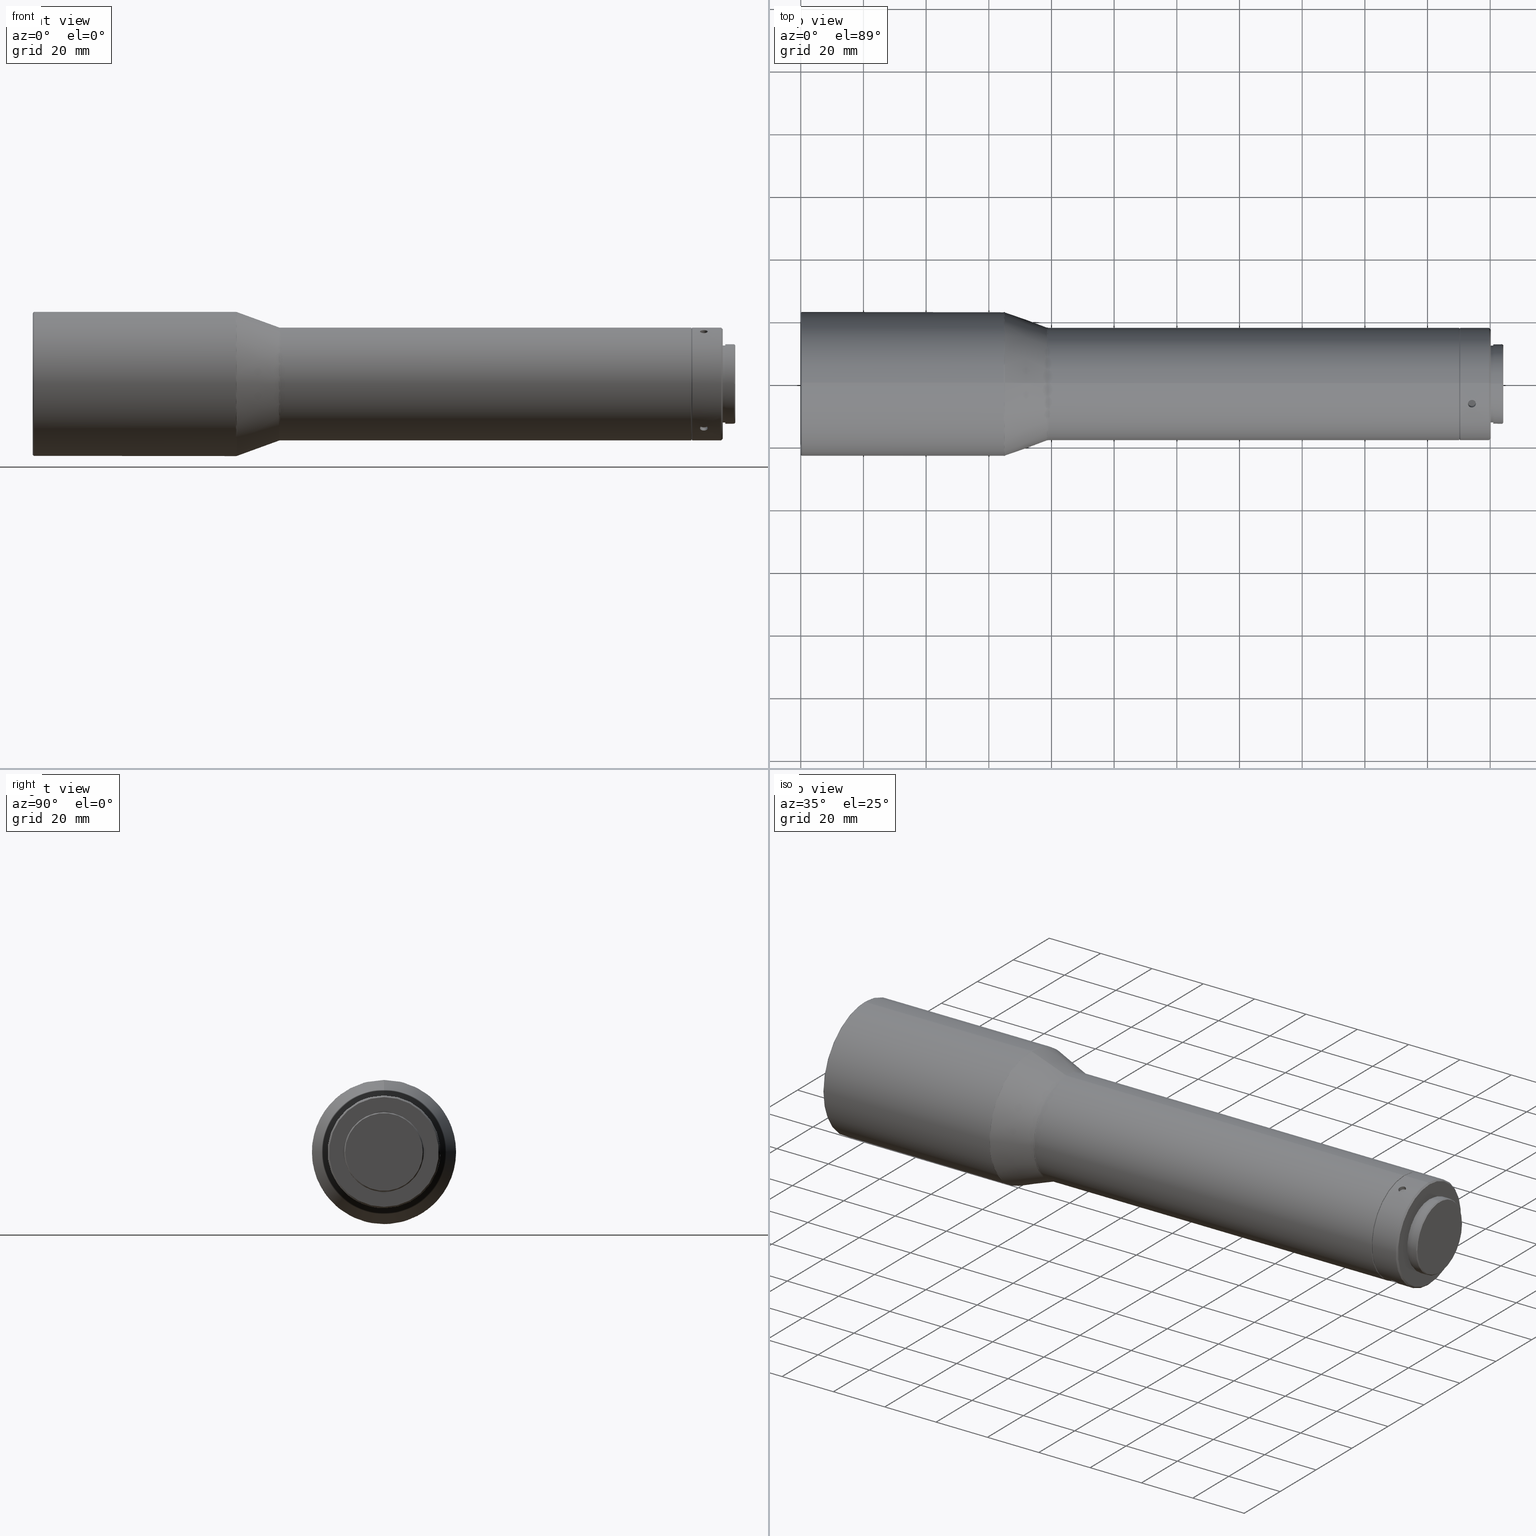
[diagram: canonical four-view strip — front | top / right | iso, engineering-drawing reading convention]
A machine part, canonical four-view strip (front | top / right | iso — engineering-drawing reading convention). The complete STEP part file that produces these views, byte-faithful:
ISO-10303-21;
HEADER;
FILE_DESCRIPTION (( 'STEP AP203' ),
    '1' );
FILE_NAME ('600084.STEP',
    '2024-08-14T02:19:47',
    ( 'Windows User' ),
    ( 'P R C' ),
    'SwSTEP 2.0',
    'SolidWorks 2020',
    '' );
FILE_SCHEMA (( 'CONFIG_CONTROL_DESIGN' ));
ENDSEC;

DATA;
#1 = CARTESIAN_POINT ( 'NONE',  ( 694.1539530000000013, -4.984072576283323563, 15.99104999157488471 ) ) ;
#2 = CARTESIAN_POINT ( 'NONE',  ( 480.0000000000000000, -3.869796473041096393E-15, -3.479664509717021198E-15 ) ) ;
#3 = VERTEX_POINT ( 'NONE', #251 ) ;
#4 = ORIENTED_EDGE ( 'NONE', *, *, #328, .T. ) ;
#5 = CARTESIAN_POINT ( 'NONE',  ( 693.3860338980899769, 17.63312331918380593, -3.617544228598711609 ) ) ;
#6 = FACE_OUTER_BOUND ( 'NONE', #321, .T. ) ;
#7 = CIRCLE ( 'NONE', #508, 21.00000000000000000 ) ;
#8 = APPROVAL_STATUS ( 'not_yet_approved' ) ;
#9 = AXIS2_PLACEMENT_3D ( 'NONE', #527, #333, #68 ) ;
#10 = CARTESIAN_POINT ( 'NONE',  ( 544.9406229593189437, 45.99999999999999289, 22.99999999999999645 ) ) ;
#11 = CARTESIAN_POINT ( 'NONE',  ( 693.8263084203707649, 16.70401833738361219, -1.238707011297198290 ) ) ;
#12 = LOCAL_TIME ( 10, 19, 47.00000000000000000, #532 ) ;
#13 = CARTESIAN_POINT ( 'NONE',  ( 695.2462418450243149, -6.744513336884611299, 15.33260676888644269 ) ) ;
#14 = DIRECTION ( 'NONE',  ( 1.000000000000000000, 0.000000000000000000, 0.000000000000000000 ) ) ;
#15 = CARTESIAN_POINT ( 'NONE',  ( 544.9406229593188300, -3.869796473041097182E-15, -23.00000000000001066 ) ) ;
#16 = CARTESIAN_POINT ( 'NONE',  ( 558.6815909303012404, -3.869796473041095604E-15, 18.02030814396401226 ) ) ;
#17 = CARTESIAN_POINT ( 'NONE',  ( 694.9225919090297339, -7.081752039195870374, 15.17948520018934744 ) ) ;
#18 = CC_DESIGN_PERSON_AND_ORGANIZATION_ASSIGNMENT ( #206, #469, ( #808 ) ) ;
#19 = ORIENTED_EDGE ( 'NONE', *, *, #185, .T. ) ;
#20 = CARTESIAN_POINT ( 'NONE',  ( 558.6815909303012404, 36.04061628792802452, 18.02030814396401226 ) ) ;
#21 = CARTESIAN_POINT ( 'NONE',  ( 692.9361681631301053, -6.319565982765296575, 16.85485129358579925 ) ) ;
#22 = CARTESIAN_POINT ( 'NONE',  ( 545.1656931626172309, -3.869796473041096393E-15, 22.93969262078587690 ) ) ;
#23 = CARTESIAN_POINT ( 'NONE',  ( 694.3191603603999056, 16.34069181403242865, -3.679191530420806266 ) ) ;
#24 = AXIS2_PLACEMENT_3D ( 'NONE', #840, #61, #192 ) ;
#25 = CARTESIAN_POINT ( 'NONE',  ( 693.0612773457091862, -6.035128622231630047, 16.95877792921812599 ) ) ;
#26 = CALENDAR_DATE ( 2024, 14, 8 ) ;
#27 = EDGE_LOOP ( 'NONE', ( #19 ) ) ;
#28 = CARTESIAN_POINT ( 'NONE',  ( 558.7967641379544830, -3.869796473041095604E-15, 17.99999999999999645 ) ) ;
#29 = ADVANCED_FACE ( 'NONE', ( #805, #290 ), #632, .T. ) ;
#30 = DIRECTION ( 'NONE',  ( 1.000000000000000000, 1.206764157201256946E-15, -0.000000000000000000 ) ) ;
#31 = DIRECTION ( 'NONE',  ( -1.000000000000000000, 0.000000000000000000, 0.000000000000000000 ) ) ;
#32 = CARTESIAN_POINT ( 'NONE',  ( 700.9539529999999559, 0.000000000000000000, 0.000000000000000000 ) ) ;
#33 = B_SPLINE_CURVE_WITH_KNOTS ( 'NONE', 3,
 ( #94, #538, #281, #146, #82, #204, #801, #208, #151, #605, #596, #91, #359, #615, #141, #11, #412, #273, #485, #816, #467, #806, #221, #534, #542, #405, #213, #675, #743, #417, #353, #609, #23, #287 ),
 .UNSPECIFIED., .T., .F.,
 ( 4, 2, 2, 2, 2, 2, 2, 2, 2, 2, 2, 2, 2, 2, 2, 2, 4 ),
 ( 0.000000000000000000, 0.0004885741745775171304, 0.0009771483491550342609, 0.001465722523732551500, 0.001954296698310068522, 0.002442870872887585761, 0.002931445047465102132, 0.003420019222042619371, 0.003908593396620135309, 0.004397167571197652981, 0.004885741745775168919, 0.005374315920352684857, 0.005862890094930200795, 0.006351464269507717600, 0.006840038444085234405, 0.007328612618662749476, 0.007817186793240265413 ),
 .UNSPECIFIED. ) ;
#34 = DATE_AND_TIME ( #752, #226 ) ;
#35 = DESIGN_CONTEXT ( 'detailed design', #175, 'design' ) ;
#36 = PLANE ( 'NONE',  #341 ) ;
#37 = ORIENTED_EDGE ( 'NONE', *, *, #603, .F. ) ;
#38 = AXIS2_PLACEMENT_3D ( 'NONE', #773, #443, #565 ) ;
#39 = CARTESIAN_POINT ( 'NONE',  ( 693.5239466262733004, -10.30667079046719259, -14.75725210230199558 ) ) ;
#40 = FACE_OUTER_BOUND ( 'NONE', #528, .T. ) ;
#41 = PERSON_AND_ORGANIZATION_ROLE ( 'classification_officer' ) ;
#42 = CARTESIAN_POINT ( 'NONE',  ( 694.1539530000000013, -11.35661923774906512, -12.31185846115420723 ) ) ;
#43 = FACE_BOUND ( 'NONE', #451, .T. ) ;
#44 = CARTESIAN_POINT ( 'NONE',  ( 693.1528579787974422, -9.794862137911502842, -13.58782560668251449 ) ) ;
#45 = ADVANCED_FACE ( 'NONE', ( #145, #670 ), #803, .T. ) ;
#46 = CIRCLE ( 'NONE', #458, 18.00000000000000355 ) ;
#47 = CARTESIAN_POINT ( 'NONE',  ( 545.1656931626172309, -3.869796473041096393E-15, -3.469446951953614189E-15 ) ) ;
#48 = CARTESIAN_POINT ( 'NONE',  ( 694.9225851668022642, -11.94878711341109501, -13.46253344001305408 ) ) ;
#49 = CARTESIAN_POINT ( 'NONE',  ( 690.1539529999998877, 0.000000000000000000, -17.70000000000001350 ) ) ;
#50 = FACE_OUTER_BOUND ( 'NONE', #373, .T. ) ;
#51 = CYLINDRICAL_SURFACE ( 'NONE', #324, 18.00000000000000355 ) ;
#52 = VERTEX_POINT ( 'NONE', #257 ) ;
#53 = EDGE_LOOP ( 'NONE', ( #334 ) ) ;
#54 = CARTESIAN_POINT ( 'NONE',  ( 694.9225851668026053, 17.63328951505440401, -3.616686464619403907 ) ) ;
#55 = FACE_OUTER_BOUND ( 'NONE', #791, .T. ) ;
#56 = CARTESIAN_POINT ( 'NONE',  ( 693.5235284048869744, -12.01785231231564310, -13.40056669838811132 ) ) ;
#57 = DIRECTION ( 'NONE',  ( -1.000000000000000000, -4.323966232386611717E-15, 6.392020651001037236E-16 ) ) ;
#58 = EDGE_LOOP ( 'NONE', ( #78 ) ) ;
#59 = CARTESIAN_POINT ( 'NONE',  ( 694.3191542896942110, 17.58070249249593076, -3.862499174154911064 ) ) ;
#60 = DIRECTION ( 'NONE',  ( 0.000000000000000000, 0.6212709192228513810, 0.7835958428475698900 ) ) ;
#61 = DIRECTION ( 'NONE',  ( -1.000000000000000000, 0.000000000000000000, 0.000000000000000000 ) ) ;
#62 = AXIS2_PLACEMENT_3D ( 'NONE', #818, #88, #157 ) ;
#63 = AXIS2_PLACEMENT_3D ( 'NONE', #780, #183, #131 ) ;
#64 = CARTESIAN_POINT ( 'NONE',  ( 700.1539529999998877, 0.000000000000000000, 12.30000000000000071 ) ) ;
#65 = EDGE_LOOP ( 'NONE', ( #189 ) ) ;
#66 = CARTESIAN_POINT ( 'NONE',  ( 695.2466198115700990, -5.574769174693775753, 15.79555437859254674 ) ) ;
#67 = FACE_OUTER_BOUND ( 'NONE', #242, .T. ) ;
#68 = DIRECTION ( 'NONE',  ( 0.000000000000000000, 0.000000000000000000, 1.000000000000000000 ) ) ;
#69 = EDGE_LOOP ( 'NONE', ( #200 ) ) ;
#70 = CARTESIAN_POINT ( 'NONE',  ( 694.1539529999998877, 17.94629862044067181, -1.389376056353806899 ) ) ;
#71 = FACE_OUTER_BOUND ( 'NONE', #65, .T. ) ;
#72 = VERTEX_POINT ( 'NONE', #144 ) ;
#73 = CARTESIAN_POINT ( 'NONE',  ( 545.0557961669720726, -3.869796473041097182E-15, -22.97969185603598419 ) ) ;
#74 = CARTESIAN_POINT ( 'NONE',  ( 558.7967641379544830, -3.869796473041095604E-15, -18.00000000000000355 ) ) ;
#75 = CARTESIAN_POINT ( 'NONE',  ( 692.9040663716228892, -6.011102590663226941, 15.63482975230559191 ) ) ;
#76 = AXIS2_PLACEMENT_3D ( 'NONE', #386, #844, #243 ) ;
#77 = CALENDAR_DATE ( 2024, 14, 8 ) ;
#78 = ORIENTED_EDGE ( 'NONE', *, *, #799, .F. ) ;
#79 = FACE_BOUND ( 'NONE', #837, .T. ) ;
#80 = FACE_OUTER_BOUND ( 'NONE', #161, .T. ) ;
#81 = EDGE_LOOP ( 'NONE', ( #383 ) ) ;
#82 = CARTESIAN_POINT ( 'NONE',  ( 693.3853152528250803, 16.39447233699084450, -3.433549138737826745 ) ) ;
#83 = CARTESIAN_POINT ( 'NONE',  ( 692.9038406239671986, -6.472784356443936460, 16.79671564449179044 ) ) ;
#84 = EDGE_CURVE ( 'NONE', #705, #705, #7, .T. ) ;
#85 = DIRECTION ( 'NONE',  ( 0.000000000000000000, 0.000000000000000000, 1.000000000000000000 ) ) ;
#86 = DIRECTION ( 'NONE',  ( 0.000000000000000000, 0.000000000000000000, 1.000000000000000000 ) ) ;
#87 = CARTESIAN_POINT ( 'NONE',  ( 558.7967641379544830, -36.00000000000001421, 17.99999999999999289 ) ) ;
#88 = DIRECTION ( 'NONE',  ( 1.000000000000000000, 0.000000000000000000, 0.000000000000000000 ) ) ;
#89 = PERSON_AND_ORGANIZATION ( #766, #106 ) ;
#90 = EDGE_CURVE ( 'NONE', #639, #639, #487, .T. ) ;
#91 = CARTESIAN_POINT ( 'NONE',  ( 693.0612865907650075, 16.65064900731228192, -1.825781247989363587 ) ) ;
#92 = CIRCLE ( 'NONE', #198, 23.00000000000000000 ) ;
#93 = CARTESIAN_POINT ( 'NONE',  ( 694.4815780172561972, -7.740454194361974238, 16.25082554585191730 ) ) ;
#94 = CARTESIAN_POINT ( 'NONE',  ( 694.1539530000000013, 16.34069181403242865, -3.679191530420805378 ) ) ;
#95 = CARTESIAN_POINT ( 'NONE',  ( 695.2466290156608011, -7.204478414539099873, 16.49601215649212094 ) ) ;
#96 = COORDINATED_UNIVERSAL_TIME_OFFSET ( 8, 0, .AHEAD. ) ;
#97 = DIRECTION ( 'NONE',  ( 0.000000000000000000, 0.000000000000000000, 1.000000000000000000 ) ) ;
#98 = ORIENTED_EDGE ( 'NONE', *, *, #720, .T. ) ;
#99 = ADVANCED_FACE ( 'NONE', ( #693, #55 ), #697, .F. ) ;
#100 = PRODUCT_DEFINITION_SHAPE ( 'NONE', 'NONE',  #472 ) ;
#101 = SECURITY_CLASSIFICATION_LEVEL ( 'unclassified' ) ;
#102 = CARTESIAN_POINT ( 'NONE',  ( 693.3860402694754157, -9.604223922810559699, -13.72323620210708661 ) ) ;
#103 = AXIS2_PLACEMENT_3D ( 'NONE', #240, #698, #312 ) ;
#104 = DIRECTION ( 'NONE',  ( -1.000000000000000000, 0.000000000000000000, -0.000000000000000000 ) ) ;
#105 = APPROVAL ( #475, 'δָ��' ) ;
#106 = ORGANIZATION ( 'δָ��', 'δָ��', '' ) ;
#107 = DIRECTION ( 'NONE',  ( 0.000000000000000000, 0.000000000000000000, 1.000000000000000000 ) ) ;
#108 = DATE_AND_TIME ( #308, #511 ) ;
#109 = ADVANCED_FACE ( 'NONE', ( #113, #376 ), #369, .T. ) ;
#110 = DIRECTION ( 'NONE',  ( 0.000000000000000000, 0.000000000000000000, 1.000000000000000000 ) ) ;
#111 = ADVANCED_BREP_SHAPE_REPRESENTATION ( '600084', ( #429, #153, #623 ), #301 ) ;
#112 = VERTEX_POINT ( 'NONE', #509 ) ;
#113 = FACE_OUTER_BOUND ( 'NONE', #608, .T. ) ;
#114 = CARTESIAN_POINT ( 'NONE',  ( 695.2466290156608011, -10.68372638138948894, -14.48726740625360776 ) ) ;
#115 = FACE_OUTER_BOUND ( 'NONE', #649, .T. ) ;
#116 = EDGE_LOOP ( 'NONE', ( #781 ) ) ;
#117 = CARTESIAN_POINT ( 'NONE',  ( 558.9137140779818083, 35.99999999999999289, 17.99999999999999645 ) ) ;
#118 = CC_DESIGN_PERSON_AND_ORGANIZATION_ASSIGNMENT ( #536, #798, ( #808 ) ) ;
#119 = DIRECTION ( 'NONE',  ( 0.000000000000000000, -1.000000000000000000, 0.000000000000000000 ) ) ;
#120 = EDGE_LOOP ( 'NONE', ( #441 ) ) ;
#121 = CARTESIAN_POINT ( 'NONE',  ( 558.7967641379544830, -36.00000000000001421, -18.00000000000000711 ) ) ;
#122 = EDGE_CURVE ( 'NONE', #245, #245, #703, .T. ) ;
#123 = CYLINDRICAL_SURFACE ( 'NONE', #648, 16.74976594698285837 ) ;
#124 = CARTESIAN_POINT ( 'NONE',  ( 694.3191542896935289, -12.13537365316246941, -13.29408538780048765 ) ) ;
#125 = CYLINDRICAL_SURFACE ( 'NONE', #9, 12.30000000000000071 ) ;
#126 = ORIENTED_EDGE ( 'NONE', *, *, #122, .F. ) ;
#127 = FACE_OUTER_BOUND ( 'NONE', #770, .T. ) ;
#128 = CARTESIAN_POINT ( 'NONE',  ( 692.9038402292597993, -6.314391396067536633, 15.51482249451557216 ) ) ;
#129 = CARTESIAN_POINT ( 'NONE',  ( 693.9887562969522605, -12.13537410193711352, -13.29408497814099732 ) ) ;
#130 = CIRCLE ( 'NONE', #103, 18.00000000000000355 ) ;
#131 = DIRECTION ( 'NONE',  ( 0.000000000000000000, -1.000000000000000000, 0.000000000000000000 ) ) ;
#132 = ORIENTED_EDGE ( 'NONE', *, *, #160, .T. ) ;
#133 = CYLINDRICAL_SURFACE ( 'NONE', #356, 23.00000000000000000 ) ;
#134 = B_SPLINE_CURVE_WITH_KNOTS ( 'NONE', 3,
 ( #646, #667, #138, #187, #325, #260, #525, #191, #75, #128, #340, #531, #398, #602, #598, #793, #269, #390, #394, #274, #17, #408, #13, #535, #650, #582, #656, #66, #331, #714, #142, #588, #195, #1 ),
 .UNSPECIFIED., .T., .F.,
 ( 4, 2, 2, 2, 2, 2, 2, 2, 2, 2, 2, 2, 2, 2, 2, 2, 4 ),
 ( 0.000000000000000000, 0.0004885741745775166968, 0.0009771483491550333935, 0.001465722523732549982, 0.001954296698310066787, 0.002442870872887583592, 0.002931445047465099964, 0.003420019222042616769, 0.003908593396620133574, 0.004397167571197650379, 0.004885741745775167184, 0.005374315920352683990, 0.005862890094930199927, 0.006351464269507716733, 0.006840038444085233538, 0.007328612618662750343, 0.007817186793240267148 ),
 .UNSPECIFIED. ) ;
#135 = ADVANCED_FACE ( 'NONE', ( #380, #574 ), #371, .T. ) ;
#136 = EDGE_LOOP ( 'NONE', ( #640 ) ) ;
#137 = CARTESIAN_POINT ( 'NONE',  ( 558.7967641379544830, -3.869796473041095604E-15, 17.99999999999999645 ) ) ;
#138 = CARTESIAN_POINT ( 'NONE',  ( 693.8266383750029718, -5.015257367322870863, 15.98142070950372684 ) ) ;
#139 = APPROVAL_ROLE ( '' ) ;
#140 = ORIENTED_EDGE ( 'NONE', *, *, #196, .T. ) ;
#141 = CARTESIAN_POINT ( 'NONE',  ( 693.5235235449296169, 16.69423364120878972, -1.364253205317045969 ) ) ;
#142 = CARTESIAN_POINT ( 'NONE',  ( 694.7843839461005473, -5.135341497592309956, 15.94323967701663491 ) ) ;
#143 = AXIS2_PLACEMENT_3D ( 'NONE', #352, #834, #239 ) ;
#144 = CARTESIAN_POINT ( 'NONE',  ( 690.1539529999997740, 0.000000000000000000, 17.90000000000001990 ) ) ;
#145 = FACE_OUTER_BOUND ( 'NONE', #314, .T. ) ;
#146 = CARTESIAN_POINT ( 'NONE',  ( 693.5239352389352234, 16.37487284808257115, -3.524507563301432889 ) ) ;
#147 = ADVANCED_FACE ( 'NONE', ( #305 ), #182, .T. ) ;
#148 = CARTESIAN_POINT ( 'NONE',  ( 480.3000000000000114, -3.869796473041096393E-15, -3.469446951953614189E-15 ) ) ;
#149 = PERSON_AND_ORGANIZATION ( #766, #106 ) ;
#150 = CARTESIAN_POINT ( 'NONE',  ( 545.0557961669719589, -45.95938371207196838, -22.97969185603598419 ) ) ;
#151 = CARTESIAN_POINT ( 'NONE',  ( 692.9040663716228892, 16.54571104467299847, -2.611647327884065728 ) ) ;
#152 = CARTESIAN_POINT ( 'NONE',  ( 693.5239466262733004, -7.626819815411176151, 16.30446478413866274 ) ) ;
#153 = MANIFOLD_SOLID_BREP ( '<��Ƭ>-<�ƶ���1>', #689 ) ;
#154 = EDGE_LOOP ( 'NONE', ( #569 ) ) ;
#155 = CARTESIAN_POINT ( 'NONE',  ( 695.3709683772533481, -6.317341902085681582, 16.85567621398044125 ) ) ;
#156 = CARTESIAN_POINT ( 'NONE',  ( 558.5716939346561958, 36.12061475842821778, 18.06030737921410889 ) ) ;
#157 = DIRECTION ( 'NONE',  ( 0.000000000000000000, 0.000000000000000000, -1.000000000000000000 ) ) ;
#158 = PERSON_AND_ORGANIZATION ( #766, #106 ) ;
#159 = DIRECTION ( 'NONE',  ( 0.000000000000000000, 0.3679784465944443417, -0.9298343201032858163 ) ) ;
#160 = EDGE_CURVE ( 'NONE', #3, #3, #620, .T. ) ;
#161 = EDGE_LOOP ( 'NONE', ( #246 ) ) ;
#162 = CARTESIAN_POINT ( 'NONE',  ( 695.3717379096971172, -6.925952735488710488, 16.61487601513992729 ) ) ;
#163 = APPROVAL_DATE_TIME ( #108, #700 ) ;
#164 = DIRECTION ( 'NONE',  ( 0.000000000000000000, 1.000000000000000000, 1.318609258053554868E-16 ) ) ;
#165 = CC_DESIGN_PERSON_AND_ORGANIZATION_ASSIGNMENT ( #794, #550, ( #472 ) ) ;
#166 = CYLINDRICAL_SURFACE ( 'NONE', #285, 1.249999999999991118 ) ;
#167 = CIRCLE ( 'NONE', #237, 12.69999999999999929 ) ;
#168 = CC_DESIGN_APPROVAL ( #700, ( #546 ) ) ;
#169 = EDGE_CURVE ( 'NONE', #845, #845, #236, .T. ) ;
#170 = CYLINDRICAL_SURFACE ( 'NONE', #431, 16.74976594698285837 ) ;
#171 = DIRECTION ( 'NONE',  ( 1.000000000000000000, 1.206764157201256946E-15, -0.000000000000000000 ) ) ;
#172 = DIRECTION ( 'NONE',  ( 0.000000000000000000, 0.000000000000000000, 1.000000000000000000 ) ) ;
#173 = CARTESIAN_POINT ( 'NONE',  ( 694.4815780172561972, -10.20340065799581630, -14.82884274207328268 ) ) ;
#174 = FACE_OUTER_BOUND ( 'NONE', #517, .T. ) ;
#175 = APPLICATION_CONTEXT ( 'configuration controlled 3d designs of mechanical parts and assemblies' ) ;
#176 = CYLINDRICAL_SURFACE ( 'NONE', #690, 16.74976594698285837 ) ;
#177 = CARTESIAN_POINT ( 'NONE',  ( 695.1531230424836849, -11.77517310556040542, -13.61464720215605162 ) ) ;
#178 = VERTEX_POINT ( 'NONE', #571 ) ;
#179 = ORIENTED_EDGE ( 'NONE', *, *, #768, .F. ) ;
#180 = CARTESIAN_POINT ( 'NONE',  ( 693.8263297959090323, 17.58779726965680368, -3.830580796697999890 ) ) ;
#181 = AXIS2_PLACEMENT_3D ( 'NONE', #514, #248, #315 ) ;
#182 = SPHERICAL_SURFACE ( 'NONE', #76, 31.20951493132240273 ) ;
#183 = DIRECTION ( 'NONE',  ( -1.000000000000000000, -4.323966232386611717E-15, 6.392020651001037236E-16 ) ) ;
#184 = ORIENTED_EDGE ( 'NONE', *, *, #303, .F. ) ;
#185 = EDGE_CURVE ( 'NONE', #52, #52, #663, .T. ) ;
#186 = CARTESIAN_POINT ( 'NONE',  ( 558.7967641379544830, 35.99999999999998579, 17.99999999999999289 ) ) ;
#187 = CARTESIAN_POINT ( 'NONE',  ( 693.5239352389351097, -5.135123338391931469, 15.94330965183023530 ) ) ;
#188 = VERTEX_POINT ( 'NONE', #316 ) ;
#189 = ORIENTED_EDGE ( 'NONE', *, *, #593, .T. ) ;
#190 = CARTESIAN_POINT ( 'NONE',  ( 692.9038406239673122, 17.78277462649526797, -2.792762136347573865 ) ) ;
#191 = CARTESIAN_POINT ( 'NONE',  ( 692.9369423394489331, -5.857201853785829471, 15.69300726354346054 ) ) ;
#192 = DIRECTION ( 'NONE',  ( 0.000000000000000000, 0.000000000000000000, 1.000000000000000000 ) ) ;
#193 = CARTESIAN_POINT ( 'NONE',  ( 690.4539529999998422, -2.632292590603019455, -17.80648858471136364 ) ) ;
#194 = ORIENTED_EDGE ( 'NONE', *, *, #707, .F. ) ;
#195 = CARTESIAN_POINT ( 'NONE',  ( 694.3191603603997919, -4.984072576283323563, 15.99104999157488471 ) ) ;
#196 = EDGE_CURVE ( 'NONE', #716, #716, #355, .T. ) ;
#197 = DIRECTION ( 'NONE',  ( -1.000000000000000000, -0.000000000000000000, -0.000000000000000000 ) ) ;
#198 = AXIS2_PLACEMENT_3D ( 'NONE', #382, #387, #841 ) ;
#199 = CARTESIAN_POINT ( 'NONE',  ( 703.8539529999999331, 1.998637450913431941E-44, -2.954540154457078017E-45 ) ) ;
#200 = ORIENTED_EDGE ( 'NONE', *, *, #625, .T. ) ;
#201 = CARTESIAN_POINT ( 'NONE',  ( 558.9137140779818083, -36.00000000000000000, -18.00000000000000000 ) ) ;
#202 = CARTESIAN_POINT ( 'NONE',  ( 694.1539529999998877, 0.000000000000000000, 0.000000000000000000 ) ) ;
#203 = CARTESIAN_POINT ( 'NONE',  ( 545.1656931626172309, -3.869796473041096393E-15, -22.93969262078588400 ) ) ;
#204 = CARTESIAN_POINT ( 'NONE',  ( 693.1547898044215117, 16.44023637096639590, -3.207274694072665078 ) ) ;
#205 = CARTESIAN_POINT ( 'NONE',  ( 480.0000000000000000, -3.469446951953614189E-15, 0.000000000000000000 ) ) ;
#206 = PERSON_AND_ORGANIZATION ( #766, #106 ) ;
#207 = DIRECTION ( 'NONE',  ( -1.000000000000000000, 0.000000000000000000, 0.000000000000000000 ) ) ;
#208 = CARTESIAN_POINT ( 'NONE',  ( 692.9369423394493879, 16.51914387889526381, -2.774018031299973153 ) ) ;
#209 = DIRECTION ( 'NONE',  ( 0.000000000000000000, 0.000000000000000000, 1.000000000000000000 ) ) ;
#210 = AXIS2_PLACEMENT_3D ( 'NONE', #589, #500, #631 ) ;
#211 = APPLICATION_PROTOCOL_DEFINITION ( 'international standard', 'config_control_design', 1994, #175 ) ;
#212 = CARTESIAN_POINT ( 'NONE',  ( 545.1656931626172309, -45.87938524157177511, -22.93969262078588756 ) ) ;
#213 = CARTESIAN_POINT ( 'NONE',  ( 695.3717364863322246, 16.51954686935625105, -2.771671104105243977 ) ) ;
#214 = CARTESIAN_POINT ( 'NONE',  ( 693.5235284048869744, -5.596305029753968263, 17.10804875058898844 ) ) ;
#215 = CARTESIAN_POINT ( 'NONE',  ( 0.000000000000000000, 0.000000000000000000, 0.000000000000000000 ) ) ;
#216 = CARTESIAN_POINT ( 'NONE',  ( 544.8236730192915047, -3.869796473041096393E-15, -23.00000000000000355 ) ) ;
#217 = CARTESIAN_POINT ( 'NONE',  ( 558.5716939346561958, 36.12061475842821778, -18.06030737921411955 ) ) ;
#218 = CARTESIAN_POINT ( 'NONE',  ( 692.9369376990360934, -10.92403747239562151, -14.30692261403602750 ) ) ;
#219 = VERTEX_POINT ( 'NONE', #814 ) ;
#220 = EDGE_LOOP ( 'NONE', ( #37 ) ) ;
#221 = CARTESIAN_POINT ( 'NONE',  ( 695.2462418450242012, 16.65068363653518801, -1.825383498538271532 ) ) ;
#222 = CARTESIAN_POINT ( 'NONE',  ( 695.2462491720301614, -6.034744968265242981, 16.95890569896510058 ) ) ;
#223 = AXIS2_PLACEMENT_3D ( 'NONE', #630, #709, #839 ) ;
#224 = LOCAL_TIME ( 10, 19, 47.00000000000000000, #732 ) ;
#225 = CARTESIAN_POINT ( 'NONE',  ( 694.1539529999998877, 0.000000000000000000, 0.000000000000000000 ) ) ;
#226 = LOCAL_TIME ( 10, 19, 47.00000000000000000, #694 ) ;
#227 = CARTESIAN_POINT ( 'NONE',  ( 694.1539530000004561, -10.17638427043243432, -14.84726248102643886 ) ) ;
#228 = EDGE_CURVE ( 'NONE', #112, #112, #772, .T. ) ;
#229 = CARTESIAN_POINT ( 'NONE',  ( 692.9369423394489331, -10.66194202510938460, -12.91898923224361617 ) ) ;
#230 = ORIENTED_EDGE ( 'NONE', *, *, #413, .T. ) ;
#231 = CARTESIAN_POINT ( 'NONE',  ( 693.0612773457091862, -11.66916819272587169, -13.70596366656828735 ) ) ;
#232 = FACE_OUTER_BOUND ( 'NONE', #547, .T. ) ;
#233 = ADVANCED_FACE ( 'NONE', ( #494 ), #176, .T. ) ;
#234 = DIRECTION ( 'NONE',  ( 1.000000000000000000, 0.000000000000000000, 0.000000000000000000 ) ) ;
#235 = SHAPE_DEFINITION_REPRESENTATION ( #100, #111 ) ;
#236 = CIRCLE ( 'NONE', #181, 17.99999999999998934 ) ;
#237 = AXIS2_PLACEMENT_3D ( 'NONE', #32, #361, #209 ) ;
#238 = ADVANCED_FACE ( 'NONE', ( #50 ), #170, .T. ) ;
#239 = DIRECTION ( 'NONE',  ( 0.000000000000000000, 0.000000000000000000, 1.000000000000000000 ) ) ;
#240 = CARTESIAN_POINT ( 'NONE',  ( 690.0539529999998649, -3.869796473041096393E-15, -3.479664509717021198E-15 ) ) ;
#241 = CARTESIAN_POINT ( 'NONE',  ( 693.5235235449291622, -9.528594753603170986, -13.77550382734115608 ) ) ;
#242 = EDGE_LOOP ( 'NONE', ( #396 ) ) ;
#243 = DIRECTION ( 'NONE',  ( 0.000000000000000000, -1.000000000000000000, -1.318609258053555115E-16 ) ) ;
#244 = FACE_OUTER_BOUND ( 'NONE', #27, .T. ) ;
#245 = VERTEX_POINT ( 'NONE', #522 ) ;
#246 = ORIENTED_EDGE ( 'NONE', *, *, #768, .T. ) ;
#247 = CARTESIAN_POINT ( 'NONE',  ( 695.2462491720306161, 17.70421563982117519, -3.253210401604142543 ) ) ;
#248 = DIRECTION ( 'NONE',  ( -1.000000000000000000, -0.000000000000000000, -0.000000000000000000 ) ) ;
#249 = B_SPLINE_CURVE_WITH_KNOTS ( 'NONE', 3,
 ( #735, #278, #778, #152, #740, #414, #686, #751, #802, #83, #21, #25, #545, #424, #214, #486, #292, #748, #367, #683, #553, #282, #222, #155, #681, #555, #162, #95, #618, #809, #350, #93, #744, #418 ),
 .UNSPECIFIED., .T., .F.,
 ( 4, 2, 2, 2, 2, 2, 2, 2, 2, 2, 2, 2, 2, 2, 2, 2, 4 ),
 ( 0.000000000000000000, 0.0004885519476059300764, 0.0009771038952118601528, 0.001465655842817790121, 0.001954207790423720306, 0.002442759738029650490, 0.002931311685635580241, 0.003419863633241510426, 0.003908415580847440611, 0.004396967528453370362, 0.004885519476059300981, 0.005374071423665230732, 0.005862623371271160483, 0.006351175318877091101, 0.006839727266483020852, 0.007328279214088951471, 0.007816831161694881222 ),
 .UNSPECIFIED. ) ;
#250 = ADVANCED_FACE ( 'NONE', ( #627, #43 ), #610, .T. ) ;
#251 = CARTESIAN_POINT ( 'NONE',  ( 700.1539529999998877, 0.000000000000000000, 17.49999999999993960 ) ) ;
#252 = EDGE_LOOP ( 'NONE', ( #635 ) ) ;
#253 = CARTESIAN_POINT ( 'NONE',  ( 695.3709683772536891, 17.75611475031509201, -2.956859535391664906 ) ) ;
#254 = AXIS2_PLACEMENT_3D ( 'NONE', #288, #606, #539 ) ;
#255 = DIRECTION ( 'NONE',  ( 0.000000000000000000, 0.000000000000000000, 1.000000000000000000 ) ) ;
#256 = CARTESIAN_POINT ( 'NONE',  ( 695.3717379096971172, -10.92592834209552777, -14.30548902191356575 ) ) ;
#257 = CARTESIAN_POINT ( 'NONE',  ( 558.9137140779818083, -3.869796473041096393E-15, 18.00000000000000000 ) ) ;
#258 = EDGE_LOOP ( 'NONE', ( #456 ) ) ;
#259 = CARTESIAN_POINT ( 'NONE',  ( 695.4038400273637990, 17.78250657105517618, -2.794468420968557965 ) ) ;
#260 = CARTESIAN_POINT ( 'NONE',  ( 693.1547898044212843, -5.442536823501376908, 15.84129968851408599 ) ) ;
#261 = FACE_OUTER_BOUND ( 'NONE', #842, .T. ) ;
#262 = ORIENTED_EDGE ( 'NONE', *, *, #465, .F. ) ;
#263 = ADVANCED_FACE ( 'NONE', ( #831, #6 ), #407, .T. ) ;
#264 = CARTESIAN_POINT ( 'NONE',  ( 480.0000000000000000, 0.000000000000000000, 0.000000000000000000 ) ) ;
#265 = DIRECTION ( 'NONE',  ( 0.000000000000000000, 0.000000000000000000, 1.000000000000000000 ) ) ;
#266 = CARTESIAN_POINT ( 'NONE',  ( 703.8539529999999331, 0.000000000000000000, 12.69999999999999929 ) ) ;
#267 = ORIENTED_EDGE ( 'NONE', *, *, #363, .F. ) ;
#268 = CARTESIAN_POINT ( 'NONE',  ( 695.1531230424837986, 17.67821689341013780, -3.390275442296270203 ) ) ;
#269 = CARTESIAN_POINT ( 'NONE',  ( 693.9887484632896530, -7.308658681018981085, 15.07110372743392901 ) ) ;
#270 = CIRCLE ( 'NONE', #530, 22.69999999999998508 ) ;
#271 = CARTESIAN_POINT ( 'NONE',  ( 694.1539529999998877, -11.35661923774906690, -12.31185846115420723 ) ) ;
#272 = CARTESIAN_POINT ( 'NONE',  ( 544.9406229593188300, -3.869796473041097182E-15, 23.00000000000000355 ) ) ;
#273 = CARTESIAN_POINT ( 'NONE',  ( 694.3191626431799932, 16.70628798280549532, -1.206068453395431339 ) ) ;
#274 = CARTESIAN_POINT ( 'NONE',  ( 694.7839721988823385, -7.165844262575417289, 15.13965951983607461 ) ) ;
#275 = APPROVAL_DATE_TIME ( #599, #821 ) ;
#276 = CARTESIAN_POINT ( 'NONE',  ( 544.8236730192915047, 45.99999999999999289, -23.00000000000000000 ) ) ;
#277 = CARTESIAN_POINT ( 'NONE',  ( 558.6815909303012404, -3.869796473041095604E-15, 18.02030814396401226 ) ) ;
#278 = CARTESIAN_POINT ( 'NONE',  ( 693.9887537607352215, -7.769914350008241044, 16.23663853738007745 ) ) ;
#279 = EDGE_CURVE ( 'NONE', #188, #188, #510, .T. ) ;
#280 = CARTESIAN_POINT ( 'NONE',  ( 545.1656931626172309, -45.87938524157177511, 22.93969262078588045 ) ) ;
#281 = CARTESIAN_POINT ( 'NONE',  ( 693.8266383750031991, 16.34794500665837447, -3.647370068133275467 ) ) ;
#282 = CARTESIAN_POINT ( 'NONE',  ( 695.1531230424836849, -5.903043787849595603, 17.00492264445266599 ) ) ;
#283 = AXIS2_PLACEMENT_3D ( 'NONE', #202, #60, #468 ) ;
#284 =( LENGTH_UNIT ( ) NAMED_UNIT ( * ) SI_UNIT ( .MILLI., .METRE. ) );
#285 = AXIS2_PLACEMENT_3D ( 'NONE', #225, #159, #365 ) ;
#286 = CARTESIAN_POINT ( 'NONE',  ( 545.0557961669719589, -45.95938371207196838, 22.97969185603597708 ) ) ;
#287 = CARTESIAN_POINT ( 'NONE',  ( 694.1539530000000013, 16.34069181403242865, -3.679191530420805378 ) ) ;
#288 = CARTESIAN_POINT ( 'NONE',  ( 704.1539529999998877, 10.63443068253595847, -1.572063630499026754 ) ) ;
#289 = DATE_AND_TIME ( #26, #12 ) ;
#290 = FACE_OUTER_BOUND ( 'NONE', #220, .T. ) ;
#291 = FACE_BOUND ( 'NONE', #523, .T. ) ;
#292 = CARTESIAN_POINT ( 'NONE',  ( 693.9887562969522605, -5.445328260170564150, 17.15658474577583803 ) ) ;
#293 = FACE_OUTER_BOUND ( 'NONE', #846, .T. ) ;
#294 = ORIENTED_EDGE ( 'NONE', *, *, #196, .F. ) ;
#295 = PRODUCT ( '600084', '600084', '', ( #415 ) ) ;
#296 = ADVANCED_FACE ( 'NONE', ( #80, #346 ), #133, .T. ) ;
#297 = AXIS2_PLACEMENT_3D ( 'NONE', #767, #624, #563 ) ;
#298 = APPROVAL_PERSON_ORGANIZATION ( #421, #700, #368 ) ;
#299 = CARTESIAN_POINT ( 'NONE',  ( 695.4040657705943431, -10.53326054832188774, -13.02427264348059666 ) ) ;
#300 = ORIENTED_EDGE ( 'NONE', *, *, #465, .T. ) ;
#301 =( GEOMETRIC_REPRESENTATION_CONTEXT ( 3 ) GLOBAL_UNCERTAINTY_ASSIGNED_CONTEXT ( ( #763 ) ) GLOBAL_UNIT_ASSIGNED_CONTEXT ( ( #284, #351, #804 ) ) REPRESENTATION_CONTEXT ( 'NONE', 'WORKASPACE' ) );
#302 = CARTESIAN_POINT ( 'NONE',  ( 692.9361681631301053, -11.43694640587159306, -13.90033032875967400 ) ) ;
#303 = EDGE_CURVE ( 'NONE', #775, #775, #496, .T. ) ;
#304 = FACE_OUTER_BOUND ( 'NONE', #120, .T. ) ;
#305 = FACE_OUTER_BOUND ( 'NONE', #388, .T. ) ;
#306 = CARTESIAN_POINT ( 'NONE',  ( 694.7843839461005473, -11.23957983012420492, -12.41895603253173519 ) ) ;
#307 = DIRECTION ( 'NONE',  ( 1.000000000000000000, 0.000000000000000000, 0.000000000000000000 ) ) ;
#308 = CALENDAR_DATE ( 2024, 14, 8 ) ;
#309 = CARTESIAN_POINT ( 'NONE',  ( 693.8263084203706512, -9.424760908320941155, -13.84675071980679562 ) ) ;
#310 = ORIENTED_EDGE ( 'NONE', *, *, #483, .T. ) ;
#311 = CARTESIAN_POINT ( 'NONE',  ( 558.5716939346560821, -3.869796473041096393E-15, -3.479664509717021198E-15 ) ) ;
#312 = DIRECTION ( 'NONE',  ( 0.000000000000000000, 0.000000000000000000, 1.000000000000000000 ) ) ;
#313 = VERTEX_POINT ( 'NONE', #568 ) ;
#314 = EDGE_LOOP ( 'NONE', ( #294 ) ) ;
#315 = DIRECTION ( 'NONE',  ( 0.000000000000000000, -0.1462384772557233925, -0.9892493658172986093 ) ) ;
#316 = CARTESIAN_POINT ( 'NONE',  ( 480.0000000000000000, 0.000000000000000000, 21.00000000000000000 ) ) ;
#317 = ORIENTED_EDGE ( 'NONE', *, *, #437, .T. ) ;
#318 = FACE_BOUND ( 'NONE', #462, .T. ) ;
#319 = DIRECTION ( 'NONE',  ( 0.000000000000000000, 0.000000000000000000, 1.000000000000000000 ) ) ;
#320 = FACE_BOUND ( 'NONE', #776, .T. ) ;
#321 = EDGE_LOOP ( 'NONE', ( #329 ) ) ;
#322 = CARTESIAN_POINT ( 'NONE',  ( 693.5235284048875428, 17.61415734206959272, -3.707482052201301226 ) ) ;
#323 = AXIS2_PLACEMENT_3D ( 'NONE', #47, #439, #319 ) ;
#324 = AXIS2_PLACEMENT_3D ( 'NONE', #2, #197, #265 ) ;
#325 = CARTESIAN_POINT ( 'NONE',  ( 693.3853152528245118, -5.223695389206359785, 15.91480409484419312 ) ) ;
#326 = CARTESIAN_POINT ( 'NONE',  ( 694.4812538894949512, -12.11133574959070813, -13.31613678099930276 ) ) ;
#327 = VERTEX_POINT ( 'NONE', #584 ) ;
#328 = EDGE_CURVE ( 'NONE', #392, #392, #134, .T. ) ;
#329 = ORIENTED_EDGE ( 'NONE', *, *, #169, .T. ) ;
#330 = CARTESIAN_POINT ( 'NONE',  ( 694.1539529999998877, 17.94629862044067181, -1.389376056353806899 ) ) ;
#331 = CARTESIAN_POINT ( 'NONE',  ( 695.1550486330894500, -5.444521650468019836, 15.84062855456844154 ) ) ;
#332 = CYLINDRICAL_SURFACE ( 'NONE', #210, 1.249999999999990896 ) ;
#333 = DIRECTION ( 'NONE',  ( -1.000000000000000000, 0.000000000000000000, 0.000000000000000000 ) ) ;
#334 = ORIENTED_EDGE ( 'NONE', *, *, #593, .F. ) ;
#335 = CYLINDRICAL_SURFACE ( 'NONE', #283, 1.249999999999991784 ) ;
#336 = DATE_AND_TIME ( #728, #224 ) ;
#337 = ORIENTED_EDGE ( 'NONE', *, *, #328, .F. ) ;
#338 = CARTESIAN_POINT ( 'NONE',  ( 693.0612773457096409, 17.70429681495746266, -3.252814262650475463 ) ) ;
#339 = AXIS2_PLACEMENT_3D ( 'NONE', #311, #642, #110 ) ;
#340 = CARTESIAN_POINT ( 'NONE',  ( 692.9361695947466160, -6.465837914812671450, 15.45220144800053674 ) ) ;
#341 = AXIS2_PLACEMENT_3D ( 'NONE', #564, #31, #97 ) ;
#342 = LOCAL_TIME ( 10, 19, 47.00000000000000000, #662 ) ;
#343 = EDGE_LOOP ( 'NONE', ( #629 ) ) ;
#344 = CARTESIAN_POINT ( 'NONE',  ( 558.6815909303012404, -36.04061628792804584, 18.02030814396401226 ) ) ;
#345 = B_SPLINE_CURVE_WITH_KNOTS ( 'NONE', 3,
 ( #227, #490, #482, #39, #755, #672, #813, #218, #824, #758, #302, #231, #492, #559, #56, #521, #129, #124, #326, #567, #48, #177, #835, #764, #454, #702, #256, #114, #515, #381, #779, #173, #377, #715 ),
 .UNSPECIFIED., .T., .F.,
 ( 4, 2, 2, 2, 2, 2, 2, 2, 2, 2, 2, 2, 2, 2, 2, 2, 4 ),
 ( 0.000000000000000000, 0.0004885519476059284501, 0.0009771038952118569001, 0.001465655842817785350, 0.001954207790423713800, 0.002442759738029642250, 0.002931311685635570700, 0.003419863633241499151, 0.003908415580847427601, 0.004396967528453355617, 0.004885519476059284501, 0.005374071423665213385, 0.005862623371271141401, 0.006351175318877069417, 0.006839727266482998301, 0.007328279214088927185, 0.007816831161694855201 ),
 .UNSPECIFIED. ) ;
#346 = FACE_OUTER_BOUND ( 'NONE', #725, .T. ) ;
#347 = ADVANCED_FACE ( 'NONE', ( #71 ), #123, .T. ) ;
#348 = EDGE_LOOP ( 'NONE', ( #230 ) ) ;
#349 = CARTESIAN_POINT ( 'NONE',  ( 558.5716939346560821, -3.869796473041096393E-15, 18.06030737921411244 ) ) ;
#350 = CARTESIAN_POINT ( 'NONE',  ( 694.7843789346068206, -7.626610042654853316, 16.30456320525039615 ) ) ;
#351 =( NAMED_UNIT ( * ) PLANE_ANGLE_UNIT ( ) SI_UNIT ( $, .RADIAN. ) );
#352 = CARTESIAN_POINT ( 'NONE',  ( 700.1539529999998877, 0.000000000000000000, 0.000000000000000000 ) ) ;
#353 = CARTESIAN_POINT ( 'NONE',  ( 694.7843839461007747, 16.37492132771655662, -3.524283644485032063 ) ) ;
#354 = FACE_OUTER_BOUND ( 'NONE', #58, .T. ) ;
#355 = CIRCLE ( 'NONE', #297, 22.93969262078591598 ) ;
#356 = AXIS2_PLACEMENT_3D ( 'NONE', #719, #520, #448 ) ;
#357 = CARTESIAN_POINT ( 'NONE',  ( 699.6539529999998877, 0.000000000000000000, 18.00000000000000355 ) ) ;
#358 = ORIENTED_EDGE ( 'NONE', *, *, #826, .T. ) ;
#359 = CARTESIAN_POINT ( 'NONE',  ( 693.1528579787971012, 16.66483322653549592, -1.688686634656616503 ) ) ;
#360 = ADVANCED_FACE ( 'NONE', ( #459, #848 ), #335, .F. ) ;
#361 = DIRECTION ( 'NONE',  ( 1.000000000000000000, -0.000000000000000000, -0.000000000000000000 ) ) ;
#362 = CARTESIAN_POINT ( 'NONE',  ( 489.0000000000000568, 56.17486957814338666, 31.20951493132240273 ) ) ;
#363 = EDGE_CURVE ( 'NONE', #178, #178, #249, .T. ) ;
#364 = DIRECTION ( 'NONE',  ( -2.413528314402513892E-15, 1.000000000000000000, 0.000000000000000000 ) ) ;
#365 = DIRECTION ( 'NONE',  ( 0.000000000000000000, 0.9298343201032857053, 0.3679784465944443417 ) ) ;
#366 =( BOUNDED_SURFACE ( )  B_SPLINE_SURFACE ( 3, 3, ( 
 ( #592, #117, #529, #792, #201, #730, #463 ),
 ( #137, #186, #446, #74, #121, #87, #28 ),
 ( #16, #20, #471, #671, #796, #344, #277 ),
 ( #349, #156, #217, #481, #680, #734, #423 ) ),
 .UNSPECIFIED., .F., .T., .T. ) 
 B_SPLINE_SURFACE_WITH_KNOTS ( ( 4, 4 ),
 ( 4, 3, 4 ),
 ( 0.000000000000000000, 1.000000000000000000 ),
 ( 0.000000000000000000, 0.5000000000000000000, 1.000000000000000000 ),
 .UNSPECIFIED. ) 
 GEOMETRIC_REPRESENTATION_ITEM ( )  RATIONAL_B_SPLINE_SURFACE ( (
 ( 1.000000000000000000, 0.3333333333333333148, 0.3333333333333333148, 1.000000000000000000, 0.3333333333333333148, 0.3333333333333333148, 1.000000000000000000),
 ( 0.9898718353414676097, 0.3299572784471558329, 0.3299572784471558329, 0.9898718353414676097, 0.3299572784471558329, 0.3299572784471558329, 0.9898718353414676097),
 ( 0.9898718353414676097, 0.3299572784471558329, 0.3299572784471558329, 0.9898718353414676097, 0.3299572784471558329, 0.3299572784471558329, 0.9898718353414676097),
 ( 1.000000000000000000, 0.3333333333333333148, 0.3333333333333333148, 1.000000000000000000, 0.3333333333333333148, 0.3333333333333333148, 1.000000000000000000) ) ) 
 REPRESENTATION_ITEM ( '' )  SURFACE ( )  );
#367 = CARTESIAN_POINT ( 'NONE',  ( 694.4812538894949512, -5.476444857818306033, 17.14679282340788902 ) ) ;
#368 = APPROVAL_ROLE ( '' ) ;
#369 = CONICAL_SURFACE ( 'NONE', #323, 22.93969262078591953, 0.3490658503988599559 ) ;
#370 = CARTESIAN_POINT ( 'NONE',  ( 695.3717364863322246, -10.66011102176840986, -12.92051169581767667 ) ) ;
#371 = CYLINDRICAL_SURFACE ( 'NONE', #647, 12.69999999999999929 ) ;
#372 = CARTESIAN_POINT ( 'NONE',  ( 693.9887484632896530, -9.397629350518574398, -13.86503594906910841 ) ) ;
#373 = EDGE_LOOP ( 'NONE', ( #4 ) ) ;
#374 = DIRECTION ( 'NONE',  ( -1.000000000000000000, -1.547796461101720870E-17, -0.000000000000000000 ) ) ;
#375 = CARTESIAN_POINT ( 'NONE',  ( 693.0616645519133954, -10.89226535158049991, -12.72540160625114147 ) ) ;
#376 = FACE_BOUND ( 'NONE', #717, .T. ) ;
#377 = CARTESIAN_POINT ( 'NONE',  ( 694.3191522392659181, -10.17638427043249827, -14.84726248102640689 ) ) ;
#378 = VERTEX_POINT ( 'NONE', #722 ) ;
#379 = CIRCLE ( 'NONE', #556, 17.90000000000001990 ) ;
#380 = FACE_OUTER_BOUND ( 'NONE', #348, .T. ) ;
#381 = CARTESIAN_POINT ( 'NONE',  ( 694.9218731707630923, -10.38223670815035149, -14.70451716856126190 ) ) ;
#382 = CARTESIAN_POINT ( 'NONE',  ( 480.3000000000000114, -3.869796473041096393E-15, -3.479664509717021198E-15 ) ) ;
#383 = ORIENTED_EDGE ( 'NONE', *, *, #437, .F. ) ;
#384 = CARTESIAN_POINT ( 'NONE',  ( 692.9040659727663751, 17.83045510399110256, -2.470114279036147220 ) ) ;
#385 = ADVANCED_FACE ( 'NONE', ( #676, #474 ), #616, .F. ) ;
#386 = CARTESIAN_POINT ( 'NONE',  ( 511.6680567275546423, 3.469446951953614189E-15, 0.000000000000000000 ) ) ;
#387 = DIRECTION ( 'NONE',  ( 1.000000000000000000, 0.000000000000000000, 0.000000000000000000 ) ) ;
#388 = EDGE_LOOP ( 'NONE', ( #428 ) ) ;
#389 = DIRECTION ( 'NONE',  ( 0.000000000000000000, 0.000000000000000000, 1.000000000000000000 ) ) ;
#390 = CARTESIAN_POINT ( 'NONE',  ( 694.3191626431801069, -7.308658072059366795, 15.07110402274592253 ) ) ;
#391 = DIRECTION ( 'NONE',  ( -1.000000000000000000, -0.000000000000000000, -0.000000000000000000 ) ) ;
#392 = VERTEX_POINT ( 'NONE', #450 ) ;
#393 = CIRCLE ( 'NONE', #24, 12.30000000000000071 ) ;
#394 = CARTESIAN_POINT ( 'NONE',  ( 694.4812696958236984, -7.279328911940432079, 15.08542292956469488 ) ) ;
#395 = CARTESIAN_POINT ( 'NONE',  ( 700.9539529999999559, 0.000000000000000000, 12.30000000000000071 ) ) ;
#396 = ORIENTED_EDGE ( 'NONE', *, *, #557, .F. ) ;
#397 = CARTESIAN_POINT ( 'NONE',  ( 694.4812538894951786, 17.58778060740908700, -3.830656042408584927 ) ) ;
#398 = CARTESIAN_POINT ( 'NONE',  ( 693.1528579787974422, -6.869971088623938904, 15.27651224133900598 ) ) ;
#399 = CARTESIAN_POINT ( 'NONE',  ( 480.0000000000000000, 22.69999999999998153, -3.469446951953614189E-15 ) ) ;
#400 = CARTESIAN_POINT ( 'NONE',  ( 545.0557961669720726, -3.869796473041097182E-15, 22.97969185603597708 ) ) ;
#401 = CARTESIAN_POINT ( 'NONE',  ( 694.3191522392654633, 17.94629862044067536, -1.389376056353806899 ) ) ;
#402 = CARTESIAN_POINT ( 'NONE',  ( 703.8539529999999331, 0.000000000000000000, 0.000000000000000000 ) ) ;
#403 = DATE_TIME_ROLE ( 'creation_date' ) ;
#404 = EDGE_LOOP ( 'NONE', ( #310 ) ) ;
#405 = CARTESIAN_POINT ( 'NONE',  ( 695.4040657705943431, 16.54598124922981839, -2.609934897787010488 ) ) ;
#406 = ADVANCED_FACE ( 'NONE', ( #354 ), #611, .F. ) ;
#407 = CONICAL_SURFACE ( 'NONE', #473, 17.99999999999998224, 0.7853981633974482790 ) ;
#408 = CARTESIAN_POINT ( 'NONE',  ( 695.1531168150761459, -6.871876106391275663, 15.27564406713612222 ) ) ;
#409 = CC_DESIGN_APPROVAL ( #105, ( #472 ) ) ;
#410 = APPROVAL_DATE_TIME ( #289, #105 ) ;
#411 = CARTESIAN_POINT ( 'NONE',  ( 544.9406229593188300, -3.869796473041097182E-15, -23.00000000000001066 ) ) ;
#412 = CARTESIAN_POINT ( 'NONE',  ( 693.9887484632898804, 16.70628803153761410, -1.206067778364937837 ) ) ;
#413 = EDGE_CURVE ( 'NONE', #327, #327, #167, .T. ) ;
#414 = CARTESIAN_POINT ( 'NONE',  ( 693.1547835139832614, -7.332371507401901134, 16.43927152250556034 ) ) ;
#415 = MECHANICAL_CONTEXT ( 'NONE', #501, 'mechanical' ) ;
#416 = EDGE_LOOP ( 'NONE', ( #262 ) ) ;
#417 = CARTESIAN_POINT ( 'NONE',  ( 694.9218669205247352, 16.39430121908835858, -3.434416477951073965 ) ) ;
#418 = CARTESIAN_POINT ( 'NONE',  ( 694.1539530000004561, -7.769914350008177983, 16.23663853738011653 ) ) ;
#419 = ADVANCED_FACE ( 'NONE', ( #549, #621 ), #807, .T. ) ;
#420 = ORIENTED_EDGE ( 'NONE', *, *, #625, .F. ) ;
#421 = PERSON_AND_ORGANIZATION ( #766, #106 ) ;
#422 = CARTESIAN_POINT ( 'NONE',  ( 558.9137140779818083, -3.869796473041096393E-15, -3.479664509717021198E-15 ) ) ;
#423 = CARTESIAN_POINT ( 'NONE',  ( 558.5716939346560821, -3.869796473041096393E-15, 18.06030737921411244 ) ) ;
#424 = CARTESIAN_POINT ( 'NONE',  ( 693.3860338980891811, -5.683676458312064028, 17.07950485677616470 ) ) ;
#425 = CARTESIAN_POINT ( 'NONE',  ( 694.9225919090297339, -9.604943780135897669, -13.72271976934059445 ) ) ;
#426 = ORIENTED_EDGE ( 'NONE', *, *, #279, .T. ) ;
#427 = CARTESIAN_POINT ( 'NONE',  ( 693.1547898044212843, -10.99769954746496836, -12.63402499444154969 ) ) ;
#428 = ORIENTED_EDGE ( 'NONE', *, *, #720, .F. ) ;
#429 = MANIFOLD_SOLID_BREP ( '��ת1', #737 ) ;
#430 = B_SPLINE_CURVE_WITH_KNOTS ( 'NONE', 3,
 ( #330, #847, #843, #771, #645, #586, #718, #524, #384, #190, #787, #338, #838, #5, #322, #180, #726, #59, #397, #708, #54, #268, #247, #253, #259, #712, #519, #442, #513, #777, #655, #782, #401, #70 ),
 .UNSPECIFIED., .T., .F.,
 ( 4, 2, 2, 2, 2, 2, 2, 2, 2, 2, 2, 2, 2, 2, 2, 2, 4 ),
 ( 0.000000000000000000, 0.0004885519476059284501, 0.0009771038952118569001, 0.001465655842817785350, 0.001954207790423713800, 0.002442759738029642250, 0.002931311685635570700, 0.003419863633241499151, 0.003908415580847427601, 0.004396967528453355617, 0.004885519476059284501, 0.005374071423665213385, 0.005862623371271141401, 0.006351175318877069417, 0.006839727266482998301, 0.007328279214088927185, 0.007816831161694855201 ),
 .UNSPECIFIED. ) ;
#431 = AXIS2_PLACEMENT_3D ( 'NONE', #433, #374, #570 ) ;
#432 = CARTESIAN_POINT ( 'NONE',  ( 693.3853152528245118, -11.17077694778444297, -12.48125495610649693 ) ) ;
#433 = CARTESIAN_POINT ( 'NONE',  ( 480.0000000000000000, -3.469446951953614189E-15, 0.000000000000000000 ) ) ;
#434 = DIRECTION ( 'NONE',  ( -2.465190328815661892E-32, 1.000000000000000000, 1.318609258053555115E-16 ) ) ;
#435 = CARTESIAN_POINT ( 'NONE',  ( 700.1539529999998877, 0.000000000000000000, 0.000000000000000000 ) ) ;
#436 = DIRECTION ( 'NONE',  ( 0.000000000000000000, 0.000000000000000000, 1.000000000000000000 ) ) ;
#437 = EDGE_CURVE ( 'NONE', #444, #444, #345, .T. ) ;
#438 = CARTESIAN_POINT ( 'NONE',  ( 695.1531168150761459, -9.793157768113220030, -13.58904131336224808 ) ) ;
#439 = DIRECTION ( 'NONE',  ( -1.000000000000000000, 0.000000000000000000, 0.000000000000000000 ) ) ;
#440 = CARTESIAN_POINT ( 'NONE',  ( 690.1539529999997740, 0.000000000000000000, 0.000000000000000000 ) ) ;
#441 = ORIENTED_EDGE ( 'NONE', *, *, #84, .T. ) ;
#442 = CARTESIAN_POINT ( 'NONE',  ( 695.2466290156604600, 17.88820479592869717, -2.008744750238169452 ) ) ;
#443 = DIRECTION ( 'NONE',  ( -1.000000000000000000, 0.000000000000000000, 0.000000000000000000 ) ) ;
#444 = VERTEX_POINT ( 'NONE', #461 ) ;
#445 = ORIENTED_EDGE ( 'NONE', *, *, #84, .F. ) ;
#446 = CARTESIAN_POINT ( 'NONE',  ( 558.7967641379544830, 35.99999999999998579, -18.00000000000000711 ) ) ;
#447 = ADVANCED_FACE ( 'NONE', ( #449, #849 ), #784, .F. ) ;
#448 = DIRECTION ( 'NONE',  ( 0.000000000000000000, 0.000000000000000000, 1.000000000000000000 ) ) ;
#449 = FACE_OUTER_BOUND ( 'NONE', #786, .T. ) ;
#450 = CARTESIAN_POINT ( 'NONE',  ( 694.1539529999998877, -4.984072576283323563, 15.99104999157488471 ) ) ;
#451 = EDGE_LOOP ( 'NONE', ( #358 ) ) ;
#452 = CC_DESIGN_PERSON_AND_ORGANIZATION_ASSIGNMENT ( #479, #677, ( #295 ) ) ;
#453 = CARTESIAN_POINT ( 'NONE',  ( 690.4539529999998422, 0.000000000000000000, 0.000000000000000000 ) ) ;
#454 = CARTESIAN_POINT ( 'NONE',  ( 695.4038400273635716, -11.31133392816004068, -14.00286822301295864 ) ) ;
#455 = DIRECTION ( 'NONE',  ( -1.000000000000000000, 0.000000000000000000, 0.000000000000000000 ) ) ;
#456 = ORIENTED_EDGE ( 'NONE', *, *, #228, .T. ) ;
#457 = AXIS2_PLACEMENT_3D ( 'NONE', #402, #727, #594 ) ;
#458 = AXIS2_PLACEMENT_3D ( 'NONE', #548, #497, #107 ) ;
#459 = FACE_OUTER_BOUND ( 'NONE', #742, .T. ) ;
#460 = DIRECTION ( 'NONE',  ( 0.000000000000000000, 0.000000000000000000, -1.000000000000000000 ) ) ;
#461 = CARTESIAN_POINT ( 'NONE',  ( 694.1539530000004561, -10.17638427043243610, -14.84726248102643886 ) ) ;
#462 = EDGE_LOOP ( 'NONE', ( #746 ) ) ;
#463 = CARTESIAN_POINT ( 'NONE',  ( 558.9137140779818083, -3.869796473041096393E-15, 17.99999999999999645 ) ) ;
#464 = DIRECTION ( 'NONE',  ( 0.000000000000000000, 0.000000000000000000, -1.000000000000000000 ) ) ;
#465 = EDGE_CURVE ( 'NONE', #850, #850, #393, .T. ) ;
#466 = CARTESIAN_POINT ( 'NONE',  ( 544.8236730192915047, -46.00000000000000000, 22.99999999999999645 ) ) ;
#467 = CARTESIAN_POINT ( 'NONE',  ( 694.9225919090298476, 16.68669581933182400, -1.456765430848878440 ) ) ;
#468 = DIRECTION ( 'NONE',  ( 0.000000000000000000, -0.7835958428475697790, 0.6212709192228513810 ) ) ;
#469 = PERSON_AND_ORGANIZATION_ROLE ( 'design_supplier' ) ;
#470 = ORIENTED_EDGE ( 'NONE', *, *, #160, .F. ) ;
#471 = CARTESIAN_POINT ( 'NONE',  ( 558.6815909303012404, 36.04061628792802452, -18.02030814396402292 ) ) ;
#472 = PRODUCT_DEFINITION ( 'δ֪', '', #808, #35 ) ;
#473 = AXIS2_PLACEMENT_3D ( 'NONE', #453, #731, #464 ) ;
#474 = FACE_BOUND ( 'NONE', #416, .T. ) ;
#475 = APPROVAL_STATUS ( 'not_yet_approved' ) ;
#476 = CARTESIAN_POINT ( 'NONE',  ( 544.8236730192915047, -46.00000000000000000, -23.00000000000000000 ) ) ;
#477 = DIRECTION ( 'NONE',  ( -1.000000000000000000, 0.000000000000000000, 0.000000000000000000 ) ) ;
#478 = ADVANCED_FACE ( 'NONE', ( #651, #67 ), #332, .F. ) ;
#479 = PERSON_AND_ORGANIZATION ( #766, #106 ) ;
#480 = ORIENTED_EDGE ( 'NONE', *, *, #603, .T. ) ;
#481 = CARTESIAN_POINT ( 'NONE',  ( 558.5716939346560821, -3.869796473041096393E-15, -18.06030737921411955 ) ) ;
#482 = CARTESIAN_POINT ( 'NONE',  ( 693.8266539706287404, -10.20333615766820934, -14.82888679731512838 ) ) ;
#483 = EDGE_CURVE ( 'NONE', #378, #378, #130, .T. ) ;
#484 = CARTESIAN_POINT ( 'NONE',  ( 545.0557961669719589, 45.95938371207195416, -22.97969185603598419 ) ) ;
#485 = CARTESIAN_POINT ( 'NONE',  ( 694.4812696958232436, 16.70402393980550215, -1.238627704539475571 ) ) ;
#486 = CARTESIAN_POINT ( 'NONE',  ( 693.8263297959084639, -5.476518353639324488, 17.14676963048230007 ) ) ;
#487 = CIRCLE ( 'NONE', #143, 12.30000000000000071 ) ;
#488 = CIRCLE ( 'NONE', #63, 12.40000000000003411 ) ;
#489 = CARTESIAN_POINT ( 'NONE',  ( 692.9038402292597993, -10.27903471742291153, -13.22583460569020808 ) ) ;
#490 = CARTESIAN_POINT ( 'NONE',  ( 693.9887537607352215, -10.17638427043236860, -14.84726248102647261 ) ) ;
#491 = CARTESIAN_POINT ( 'NONE',  ( 489.0000000000000568, 0.000000000000000000, 0.000000000000000000 ) ) ;
#492 = CARTESIAN_POINT ( 'NONE',  ( 693.1528569321258146, -11.77359925896622528, -13.61602088440971947 ) ) ;
#493 = CARTESIAN_POINT ( 'NONE',  ( 694.4812696958236984, -9.424695027865016783, -13.84679522502534255 ) ) ;
#494 = FACE_OUTER_BOUND ( 'NONE', #591, .T. ) ;
#495 = AXIS2_PLACEMENT_3D ( 'NONE', #435, #104, #255 ) ;
#496 = CIRCLE ( 'NONE', #457, 12.69999999999999929 ) ;
#497 = DIRECTION ( 'NONE',  ( -1.000000000000000000, 0.000000000000000000, 0.000000000000000000 ) ) ;
#498 = ADVANCED_FACE ( 'NONE', ( #244, #638 ), #51, .T. ) ;
#499 = CARTESIAN_POINT ( 'NONE',  ( 690.1539529999998877, 0.000000000000000000, 0.000000000000000000 ) ) ;
#500 = DIRECTION ( 'NONE',  ( 0.000000000000000000, -0.9892493658172984983, 0.1462384772557234203 ) ) ;
#501 = APPLICATION_CONTEXT ( 'configuration controlled 3d designs of mechanical parts and assemblies' ) ;
#502 = EDGE_LOOP ( 'NONE', ( #851 ) ) ;
#503 = DIRECTION ( 'NONE',  ( 0.000000000000000000, 0.000000000000000000, 1.000000000000000000 ) ) ;
#504 = VERTEX_POINT ( 'NONE', #357 ) ;
#505 = ORIENTED_EDGE ( 'NONE', *, *, #228, .F. ) ;
#506 = DIRECTION ( 'NONE',  ( -1.000000000000000000, 0.000000000000000000, 0.000000000000000000 ) ) ;
#507 = CARTESIAN_POINT ( 'NONE',  ( 480.0000000000000000, -3.469446951953614189E-15, 0.000000000000000000 ) ) ;
#508 = AXIS2_PLACEMENT_3D ( 'NONE', #800, #207, #86 ) ;
#509 = CARTESIAN_POINT ( 'NONE',  ( 544.8236730192915047, -3.869796473041096393E-15, -23.00000000000000355 ) ) ;
#510 = CIRCLE ( 'NONE', #761, 21.00000000000000000 ) ;
#511 = LOCAL_TIME ( 10, 19, 47.00000000000000000, #96 ) ;
#512 = ORIENTED_EDGE ( 'NONE', *, *, #90, .T. ) ;
#513 = CARTESIAN_POINT ( 'NONE',  ( 695.1550496175248099, 17.90280476441667190, -1.871695966698960323 ) ) ;
#514 = CARTESIAN_POINT ( 'NONE',  ( 690.4539529999998422, 0.000000000000000000, 0.000000000000000000 ) ) ;
#515 = CARTESIAN_POINT ( 'NONE',  ( 695.1550496175250373, -10.57233863753075553, -14.56843574162826727 ) ) ;
#516 = CARTESIAN_POINT ( 'NONE',  ( 545.1656931626172309, -3.869796473041096393E-15, 22.93969262078591242 ) ) ;
#517 = EDGE_LOOP ( 'NONE', ( #98 ) ) ;
#518 = EDGE_CURVE ( 'NONE', #634, #634, #577, .T. ) ;
#519 = CARTESIAN_POINT ( 'NONE',  ( 695.3717379096971172, 17.85188107758435194, -2.309386993225982732 ) ) ;
#520 = DIRECTION ( 'NONE',  ( -1.000000000000000000, -0.000000000000000000, -0.000000000000000000 ) ) ;
#521 = CARTESIAN_POINT ( 'NONE',  ( 693.8263297959084639, -12.11127891601746676, -13.31618883378459728 ) ) ;
#522 = CARTESIAN_POINT ( 'NONE',  ( 558.5716939346560821, -3.869796473041096393E-15, 18.06030737921410889 ) ) ;
#523 = EDGE_LOOP ( 'NONE', ( #738 ) ) ;
#524 = CARTESIAN_POINT ( 'NONE',  ( 692.9369376990356386, 17.85217716993098946, -2.307032655970451263 ) ) ;
#525 = CARTESIAN_POINT ( 'NONE',  ( 693.0616645519133954, -5.574388388582467435, 15.79567930235534945 ) ) ;
#526 = CARTESIAN_POINT ( 'NONE',  ( 690.1539529999998877, 0.000000000000000000, 0.000000000000000000 ) ) ;
#527 = CARTESIAN_POINT ( 'NONE',  ( 690.1539529999998877, 0.000000000000000000, 0.000000000000000000 ) ) ;
#528 = EDGE_LOOP ( 'NONE', ( #300 ) ) ;
#529 = CARTESIAN_POINT ( 'NONE',  ( 558.9137140779818083, 35.99999999999999289, -18.00000000000000000 ) ) ;
#530 = AXIS2_PLACEMENT_3D ( 'NONE', #765, #171, #817 ) ;
#531 = CARTESIAN_POINT ( 'NONE',  ( 693.0612865907646665, -6.744151561144162699, 15.33277565382522134 ) ) ;
#532 = COORDINATED_UNIVERSAL_TIME_OFFSET ( 8, 0, .AHEAD. ) ;
#533 = CARTESIAN_POINT ( 'NONE',  ( 544.9406229593189437, -46.00000000000000711, -23.00000000000000355 ) ) ;
#534 = CARTESIAN_POINT ( 'NONE',  ( 695.3709637454983294, 16.61521113585470388, -2.124158513785290747 ) ) ;
#535 = CARTESIAN_POINT ( 'NONE',  ( 695.3709637454983294, -6.468030333324366943, 15.45127418978488443 ) ) ;
#536 = PERSON_AND_ORGANIZATION ( #766, #106 ) ;
#537 = CARTESIAN_POINT ( 'NONE',  ( 544.8236730192915047, 45.99999999999999289, 22.99999999999999645 ) ) ;
#538 = CARTESIAN_POINT ( 'NONE',  ( 693.9887456396000971, 16.34069181403242510, -3.679191530420804934 ) ) ;
#539 = DIRECTION ( 'NONE',  ( 0.000000000000000000, 0.000000000000000000, 1.000000000000000000 ) ) ;
#540 = CARTESIAN_POINT ( 'NONE',  ( 480.3000000000000114, -3.869796473041096393E-15, 22.99999999999999645 ) ) ;
#541 = CARTESIAN_POINT ( 'NONE',  ( 544.8236730192915047, -3.869796473041096393E-15, -23.00000000000000355 ) ) ;
#542 = CARTESIAN_POINT ( 'NONE',  ( 695.4038396285225190, 16.59366286644998567, -2.287270938290949740 ) ) ;
#543 = ADVANCED_FACE ( 'NONE', ( #318, #641 ), #580, .F. ) ;
#544 = AXIS2_PLACEMENT_3D ( 'NONE', #148, #30, #364 ) ;
#545 = CARTESIAN_POINT ( 'NONE',  ( 693.1528569321258146, -5.905020354875055943, 17.00424649444728331 ) ) ;
#546 = SECURITY_CLASSIFICATION ( '', '', #101 ) ;
#547 = EDGE_LOOP ( 'NONE', ( #267 ) ) ;
#548 = CARTESIAN_POINT ( 'NONE',  ( 699.6539529999998877, 0.000000000000000000, 0.000000000000000000 ) ) ;
#549 = FACE_OUTER_BOUND ( 'NONE', #827, .T. ) ;
#550 = PERSON_AND_ORGANIZATION_ROLE ( 'creator' ) ;
#551 = CARTESIAN_POINT ( 'NONE',  ( 545.1656931626172309, 45.87938524157176090, 22.93969262078588045 ) ) ;
#552 = FACE_OUTER_BOUND ( 'NONE', #116, .T. ) ;
#553 = CARTESIAN_POINT ( 'NONE',  ( 694.9225851668022642, -5.684502401643189096, 17.07921990463268713 ) ) ;
#554 = CARTESIAN_POINT ( 'NONE',  ( 694.1539530000000013, -11.35661923774906512, -12.31185846115420723 ) ) ;
#555 = CARTESIAN_POINT ( 'NONE',  ( 695.4040653759024053, -6.774445288860561298, 16.67733446128744035 ) ) ;
#556 = AXIS2_PLACEMENT_3D ( 'NONE', #440, #455, #790 ) ;
#557 = EDGE_CURVE ( 'NONE', #313, #313, #430, .T. ) ;
#558 = CARTESIAN_POINT ( 'NONE',  ( 695.2466198115700990, -10.89196677137271863, -12.72566891481553775 ) ) ;
#559 = CARTESIAN_POINT ( 'NONE',  ( 693.3860338980891811, -11.94944686087175256, -13.46196062817797667 ) ) ;
#560 = ADVANCED_FACE ( 'NONE', ( #660, #127 ), #366, .F. ) ;
#561 = CARTESIAN_POINT ( 'NONE',  ( 693.5239352389351097, -11.23974950969060238, -12.41880208852893652 ) ) ;
#562 = EDGE_LOOP ( 'NONE', ( #480 ) ) ;
#563 = DIRECTION ( 'NONE',  ( 0.000000000000000000, 0.000000000000000000, 1.000000000000000000 ) ) ;
#564 = CARTESIAN_POINT ( 'NONE',  ( 489.0000000000000000, 0.000000000000000000, 0.000000000000000000 ) ) ;
#565 = DIRECTION ( 'NONE',  ( 0.000000000000000000, 0.000000000000000000, 1.000000000000000000 ) ) ;
#566 = CARTESIAN_POINT ( 'NONE',  ( 695.1550486330894500, -10.99612591493536584, -12.63540833804395547 ) ) ;
#567 = CARTESIAN_POINT ( 'NONE',  ( 694.7839606652772773, -12.01802346191266402, -13.40041284731605664 ) ) ;
#568 = CARTESIAN_POINT ( 'NONE',  ( 694.1539529999998877, 17.94629862044067536, -1.389376056353806899 ) ) ;
#569 = ORIENTED_EDGE ( 'NONE', *, *, #303, .T. ) ;
#570 = DIRECTION ( 'NONE',  ( 0.000000000000000000, -1.000000000000000000, 0.000000000000000000 ) ) ;
#571 = CARTESIAN_POINT ( 'NONE',  ( 694.1539530000004561, -7.769914350008177095, 16.23663853738011653 ) ) ;
#572 = EDGE_LOOP ( 'NONE', ( #512 ) ) ;
#573 = CARTESIAN_POINT ( 'NONE',  ( 690.1539529999997740, 15.00000000000000888, 0.000000000000000000 ) ) ;
#574 = FACE_OUTER_BOUND ( 'NONE', #154, .T. ) ;
#575 = ADVANCED_FACE ( 'NONE', ( #811, #291, #79, #552, #747 ), #682, .T. ) ;
#576 = CARTESIAN_POINT ( 'NONE',  ( 700.1539529999998877, 12.16776719955277208, -1.798733270245396199 ) ) ;
#577 = CIRCLE ( 'NONE', #665, 17.70000000000001350 ) ;
#578 = APPROVAL_PERSON_ORGANIZATION ( #149, #821, #139 ) ;
#579 = ORIENTED_EDGE ( 'NONE', *, *, #518, .T. ) ;
#580 = PLANE ( 'NONE',  #612 ) ;
#581 = AXIS2_PLACEMENT_3D ( 'NONE', #199, #57, #119 ) ;
#582 = CARTESIAN_POINT ( 'NONE',  ( 695.4040657705943431, -6.012720700907888904, 15.63420754126747525 ) ) ;
#583 = CARTESIAN_POINT ( 'NONE',  ( 489.0000000000000000, 0.000000000000000000, 0.000000000000000000 ) ) ;
#584 = CARTESIAN_POINT ( 'NONE',  ( 700.9539529999999559, 0.000000000000000000, 12.69999999999999929 ) ) ;
#585 = EDGE_LOOP ( 'NONE', ( #688 ) ) ;
#586 = CARTESIAN_POINT ( 'NONE',  ( 693.1547835139828067, 17.90301251190079412, -1.869615765858096301 ) ) ;
#587 = CC_DESIGN_DATE_AND_TIME_ASSIGNMENT ( #34, #756, ( #546 ) ) ;
#588 = CARTESIAN_POINT ( 'NONE',  ( 694.4815995981974766, -5.015334413838826499, 15.98139682296435815 ) ) ;
#589 = CARTESIAN_POINT ( 'NONE',  ( 694.1539529999998877, 0.000000000000000000, 0.000000000000000000 ) ) ;
#590 = CARTESIAN_POINT ( 'NONE',  ( 489.0000000000000000, 0.000000000000000000, 21.00000000000000000 ) ) ;
#591 = EDGE_LOOP ( 'NONE', ( #654 ) ) ;
#592 = CARTESIAN_POINT ( 'NONE',  ( 558.9137140779818083, -3.869796473041096393E-15, 17.99999999999999645 ) ) ;
#593 = EDGE_CURVE ( 'NONE', #710, #710, #33, .T. ) ;
#594 = DIRECTION ( 'NONE',  ( 0.000000000000000000, 0.000000000000000000, 1.000000000000000000 ) ) ;
#595 = CARTESIAN_POINT ( 'NONE',  ( 544.9406229593189437, 45.99999999999999289, -23.00000000000000355 ) ) ;
#596 = CARTESIAN_POINT ( 'NONE',  ( 692.9361695947465023, 16.61491795576948505, -2.126520833019969636 ) ) ;
#597 = AXIS2_PLACEMENT_3D ( 'NONE', #679, #604, #658 ) ;
#598 = CARTESIAN_POINT ( 'NONE',  ( 693.5235235449291622, -7.165638887605556562, 15.13975703265808903 ) ) ;
#599 = DATE_AND_TIME ( #77, #342 ) ;
#600 = CARTESIAN_POINT ( 'NONE',  ( 545.1656931626172309, 45.87938524157176090, -22.93969262078588756 ) ) ;
#601 = DIRECTION ( 'NONE',  ( 0.000000000000000000, 0.000000000000000000, 1.000000000000000000 ) ) ;
#602 = CARTESIAN_POINT ( 'NONE',  ( 693.3860402694754157, -7.082559211753669537, 15.17912000184175270 ) ) ;
#603 = EDGE_CURVE ( 'NONE', #504, #504, #46, .T. ) ;
#604 = DIRECTION ( 'NONE',  ( -1.000000000000000000, 0.000000000000000000, -0.000000000000000000 ) ) ;
#605 = CARTESIAN_POINT ( 'NONE',  ( 692.9038402292599130, 16.59342611349049790, -2.288987888825489314 ) ) ;
#606 = DIRECTION ( 'NONE',  ( -1.000000000000000000, 0.000000000000000000, 0.000000000000000000 ) ) ;
#607 = APPLICATION_PROTOCOL_DEFINITION ( 'international standard', 'config_control_design', 1994, #501 ) ;
#608 = EDGE_LOOP ( 'NONE', ( #140 ) ) ;
#609 = CARTESIAN_POINT ( 'NONE',  ( 694.4815995981974766, 16.34796284356644591, -3.647291400623492219 ) ) ;
#610 = CONICAL_SURFACE ( 'NONE', #38, 18.00000000000001421, 0.7853981633974831400 ) ;
#611 = PLANE ( 'NONE',  #254 ) ;
#612 = AXIS2_PLACEMENT_3D ( 'NONE', #573, #506, #389 ) ;
#613 = VERTEX_POINT ( 'NONE', #745 ) ;
#614 = EDGE_LOOP ( 'NONE', ( #426 ) ) ;
#615 = CARTESIAN_POINT ( 'NONE',  ( 693.3860402694753020, 16.68678313456428697, -1.455883799734787987 ) ) ;
#616 = PLANE ( 'NONE',  #62 ) ;
#617 = CARTESIAN_POINT ( 'NONE',  ( 695.3709637454983294, -10.14718080253028809, -13.32711567599971936 ) ) ;
#618 = CARTESIAN_POINT ( 'NONE',  ( 695.1550496175250373, -7.330466126885817779, 16.44013170832755222 ) ) ;
#619 = CARTESIAN_POINT ( 'NONE',  ( 695.4038396285224053, -10.27766617112269643, -13.22689811503480861 ) ) ;
#620 = CIRCLE ( 'NONE', #495, 17.49999999999993960 ) ;
#621 = FACE_BOUND ( 'NONE', #69, .T. ) ;
#622 = FACE_OUTER_BOUND ( 'NONE', #572, .T. ) ;
#623 = AXIS2_PLACEMENT_3D ( 'NONE', #215, #85, #14 ) ;
#624 = DIRECTION ( 'NONE',  ( 1.000000000000000000, 0.000000000000000000, 0.000000000000000000 ) ) ;
#625 = EDGE_CURVE ( 'NONE', #669, #669, #270, .T. ) ;
#626 = CARTESIAN_POINT ( 'NONE',  ( 694.7839721988823385, -9.528407617537183683, -13.77563293087135854 ) ) ;
#627 = FACE_OUTER_BOUND ( 'NONE', #729, .T. ) ;
#628 = CARTESIAN_POINT ( 'NONE',  ( 693.0612865907646665, -9.906497446168055276, -13.50699440583598232 ) ) ;
#629 = ORIENTED_EDGE ( 'NONE', *, *, #557, .T. ) ;
#630 = CARTESIAN_POINT ( 'NONE',  ( 480.0000000000000000, 21.75000000000000000, -3.479664509717021198E-15 ) ) ;
#631 = DIRECTION ( 'NONE',  ( 0.000000000000000000, -0.1462384772557234480, -0.9892493658172984983 ) ) ;
#632 = CONICAL_SURFACE ( 'NONE', #597, 18.00000000000000355, 0.7853981633974552734 ) ;
#633 = CIRCLE ( 'NONE', #724, 21.45211006975307555 ) ;
#634 = VERTEX_POINT ( 'NONE', #49 ) ;
#635 = ORIENTED_EDGE ( 'NONE', *, *, #413, .F. ) ;
#636 = CC_DESIGN_DATE_AND_TIME_ASSIGNMENT ( #336, #403, ( #472 ) ) ;
#637 = DIRECTION ( 'NONE',  ( 0.000000000000000000, 0.000000000000000000, -1.000000000000000000 ) ) ;
#638 = FACE_OUTER_BOUND ( 'NONE', #404, .T. ) ;
#639 = VERTEX_POINT ( 'NONE', #64 ) ;
#640 = ORIENTED_EDGE ( 'NONE', *, *, #279, .F. ) ;
#641 = FACE_OUTER_BOUND ( 'NONE', #502, .T. ) ;
#642 = DIRECTION ( 'NONE',  ( -1.000000000000000000, -0.000000000000000000, -0.000000000000000000 ) ) ;
#643 = PLANE ( 'NONE',  #774 ) ;
#644 = ORIENTED_EDGE ( 'NONE', *, *, #483, .F. ) ;
#645 = CARTESIAN_POINT ( 'NONE',  ( 693.3853218769148725, 17.92551483557699754, -1.639889628216150808 ) ) ;
#646 = CARTESIAN_POINT ( 'NONE',  ( 694.1539530000000013, -4.984072576283323563, 15.99104999157488471 ) ) ;
#647 = AXIS2_PLACEMENT_3D ( 'NONE', #499, #828, #172 ) ;
#648 = AXIS2_PLACEMENT_3D ( 'NONE', #205, #797, #788 ) ;
#649 = EDGE_LOOP ( 'NONE', ( #184 ) ) ;
#650 = CARTESIAN_POINT ( 'NONE',  ( 695.4038396285224053, -6.315996695327231514, 15.51416905332563267 ) ) ;
#651 = FACE_OUTER_BOUND ( 'NONE', #53, .T. ) ;
#652 = DIRECTION ( 'NONE',  ( -1.000000000000000000, 0.000000000000000000, 0.000000000000000000 ) ) ;
#653 = ADVANCED_FACE ( 'NONE', ( #304 ), #36, .T. ) ;
#654 = ORIENTED_EDGE ( 'NONE', *, *, #707, .T. ) ;
#655 = CARTESIAN_POINT ( 'NONE',  ( 694.7843789346063659, 17.93347095468332597, -1.547443560928356776 ) ) ;
#656 = CARTESIAN_POINT ( 'NONE',  ( 695.3717364863322246, -5.859435847587796786, 15.69218279992280429 ) ) ;
#657 = VERTEX_POINT ( 'NONE', #540 ) ;
#658 = DIRECTION ( 'NONE',  ( 0.000000000000000000, 0.000000000000000000, 1.000000000000000000 ) ) ;
#659 = ADVANCED_FACE ( 'NONE', ( #174 ), #754, .F. ) ;
#660 = FACE_OUTER_BOUND ( 'NONE', #760, .T. ) ;
#661 = DIRECTION ( 'NONE',  ( 0.000000000000000000, 0.000000000000000000, 1.000000000000000000 ) ) ;
#662 = COORDINATED_UNIVERSAL_TIME_OFFSET ( 8, 0, .AHEAD. ) ;
#663 = CIRCLE ( 'NONE', #721, 18.00000000000000355 ) ;
#664 = ORIENTED_EDGE ( 'NONE', *, *, #122, .T. ) ;
#665 = AXIS2_PLACEMENT_3D ( 'NONE', #526, #789, #460 ) ;
#666 = CC_DESIGN_APPROVAL ( #821, ( #808 ) ) ;
#667 = CARTESIAN_POINT ( 'NONE',  ( 693.9887456396002108, -4.984072576283322675, 15.99104999157488116 ) ) ;
#668 = CONICAL_SURFACE ( 'NONE', #581, 12.69999999999999929, 0.7853981633974453924 ) ;
#669 = VERTEX_POINT ( 'NONE', #399 ) ;
#670 = FACE_OUTER_BOUND ( 'NONE', #258, .T. ) ;
#671 = CARTESIAN_POINT ( 'NONE',  ( 558.6815909303012404, -3.869796473041095604E-15, -18.02030814396401226 ) ) ;
#672 = CARTESIAN_POINT ( 'NONE',  ( 693.1547835139832614, -10.57064100449888855, -14.56965575664807311 ) ) ;
#673 = ADVANCED_FACE ( 'NONE', ( #293, #232 ), #166, .F. ) ;
#674 = CARTESIAN_POINT ( 'NONE',  ( 545.0557961669720726, -3.869796473041097182E-15, -22.97969185603598419 ) ) ;
#675 = CARTESIAN_POINT ( 'NONE',  ( 695.2466198115700990, 16.46673594606654234, -3.069885463777128454 ) ) ;
#676 = FACE_OUTER_BOUND ( 'NONE', #252, .T. ) ;
#677 = PERSON_AND_ORGANIZATION_ROLE ( 'design_owner' ) ;
#678 = PRODUCT_RELATED_PRODUCT_CATEGORY ( 'detail', '', ( #295 ) ) ;
#679 = CARTESIAN_POINT ( 'NONE',  ( 699.6539529999998877, 0.000000000000000000, 0.000000000000000000 ) ) ;
#680 = CARTESIAN_POINT ( 'NONE',  ( 558.5716939346561958, -36.12061475842823910, -18.06030737921411955 ) ) ;
#681 = CARTESIAN_POINT ( 'NONE',  ( 695.4038400273635716, -6.471172642894996052, 16.79733664398193582 ) ) ;
#682 = CYLINDRICAL_SURFACE ( 'NONE', #704, 18.00000000000000355 ) ;
#683 = CARTESIAN_POINT ( 'NONE',  ( 694.7839606652772773, -5.596086216018657744, 17.10812004495183203 ) ) ;
#684 = APPROVAL_STATUS ( 'not_yet_approved' ) ;
#685 = CARTESIAN_POINT ( 'NONE',  ( 694.3191626431801069, -9.397629910746070792, -13.86503556935061354 ) ) ;
#686 = CARTESIAN_POINT ( 'NONE',  ( 693.0616571845231420, -7.204846840109385475, 16.49584224563528068 ) ) ;
#687 = CARTESIAN_POINT ( 'NONE',  ( 693.9887456396002108, -11.35661923774906334, -12.31185846115420190 ) ) ;
#688 = ORIENTED_EDGE ( 'NONE', *, *, #799, .T. ) ;
#689 = CLOSED_SHELL ( 'NONE', ( #147, #659 ) ) ;
#690 = AXIS2_PLACEMENT_3D ( 'NONE', #507, #762, #701 ) ;
#691 = CARTESIAN_POINT ( 'NONE',  ( 544.8236730192915047, -3.869796473041096393E-15, -3.479664509717021198E-15 ) ) ;
#692 = CARTESIAN_POINT ( 'NONE',  ( 692.9040663716228892, -10.53460845400972978, -13.02318242442164831 ) ) ;
#693 = FACE_BOUND ( 'NONE', #136, .T. ) ;
#694 = COORDINATED_UNIVERSAL_TIME_OFFSET ( 8, 0, .AHEAD. ) ;
#695 = B_SPLINE_CURVE_WITH_KNOTS ( 'NONE', 3,
 ( #42, #687, #696, #561, #432, #427, #375, #229, #692, #489, #825, #628, #44, #102, #241, #309, #372, #685, #493, #626, #425, #438, #829, #617, #619, #299, #370, #558, #566, #822, #306, #832, #699, #554 ),
 .UNSPECIFIED., .T., .F.,
 ( 4, 2, 2, 2, 2, 2, 2, 2, 2, 2, 2, 2, 2, 2, 2, 2, 4 ),
 ( 0.000000000000000000, 0.0004885741745775168052, 0.0009771483491550336103, 0.001465722523732550416, 0.001954296698310067221, 0.002442870872887584026, 0.002931445047465100831, 0.003420019222042617636, 0.003908593396620134441, 0.004397167571197651247, 0.004885741745775168052, 0.005374315920352684857, 0.005862890094930201662, 0.006351464269507718467, 0.006840038444085235272, 0.007328612618662752078, 0.007817186793240268883 ),
 .UNSPECIFIED. ) ;
#696 = CARTESIAN_POINT ( 'NONE',  ( 693.8266383750029718, -11.33268763933546808, -12.33405064137058993 ) ) ;
#697 = PLANE ( 'NONE',  #223 ) ;
#698 = DIRECTION ( 'NONE',  ( -1.000000000000000000, -0.000000000000000000, -0.000000000000000000 ) ) ;
#699 = CARTESIAN_POINT ( 'NONE',  ( 694.3191603603997919, -11.35661923774906690, -12.31185846115421434 ) ) ;
#700 = APPROVAL ( #684, 'δָ��' ) ;
#701 = DIRECTION ( 'NONE',  ( 0.000000000000000000, -1.000000000000000000, 0.000000000000000000 ) ) ;
#702 = CARTESIAN_POINT ( 'NONE',  ( 695.4040653759024053, -11.05577266645424750, -14.20550894734482661 ) ) ;
#703 = CIRCLE ( 'NONE', #339, 18.06030737921411244 ) ;
#704 = AXIS2_PLACEMENT_3D ( 'NONE', #739, #477, #601 ) ;
#705 = VERTEX_POINT ( 'NONE', #590 ) ;
#706 = ORIENTED_EDGE ( 'NONE', *, *, #185, .F. ) ;
#707 = EDGE_CURVE ( 'NONE', #736, #736, #695, .T. ) ;
#708 = CARTESIAN_POINT ( 'NONE',  ( 694.7839606652776183, 17.61410967793141324, -3.707707197635667473 ) ) ;
#709 = DIRECTION ( 'NONE',  ( 1.000000000000000000, -0.000000000000000000, 0.000000000000000000 ) ) ;
#710 = VERTEX_POINT ( 'NONE', #836 ) ;
#711 = EDGE_LOOP ( 'NONE', ( #579 ) ) ;
#712 = CARTESIAN_POINT ( 'NONE',  ( 695.4040653759024053, 17.83021795531493225, -2.471825513942197627 ) ) ;
#713 = CC_DESIGN_PERSON_AND_ORGANIZATION_ASSIGNMENT ( #158, #41, ( #546 ) ) ;
#714 = CARTESIAN_POINT ( 'NONE',  ( 694.9218669205246215, -5.222858692462742702, 15.91508957200021790 ) ) ;
#715 = CARTESIAN_POINT ( 'NONE',  ( 694.1539530000004561, -10.17638427043243432, -14.84726248102643886 ) ) ;
#716 = VERTEX_POINT ( 'NONE', #516 ) ;
#717 = EDGE_LOOP ( 'NONE', ( #664 ) ) ;
#718 = CARTESIAN_POINT ( 'NONE',  ( 693.0616571845228009, 17.88824186159531848, -2.008340728907441086 ) ) ;
#719 = CARTESIAN_POINT ( 'NONE',  ( 480.0000000000000000, -3.869796473041096393E-15, -3.479664509717021198E-15 ) ) ;
#720 = EDGE_CURVE ( 'NONE', #613, #613, #633, .T. ) ;
#721 = AXIS2_PLACEMENT_3D ( 'NONE', #422, #307, #503 ) ;
#722 = CARTESIAN_POINT ( 'NONE',  ( 690.0539529999998649, -3.869796473041096393E-15, 18.00000000000000000 ) ) ;
#723 = AXIS2_PLACEMENT_3D ( 'NONE', #583, #391, #436 ) ;
#724 = AXIS2_PLACEMENT_3D ( 'NONE', #491, #757, #164 ) ;
#725 = EDGE_LOOP ( 'NONE', ( #505 ) ) ;
#726 = CARTESIAN_POINT ( 'NONE',  ( 693.9887562969530563, 17.58070236210770787, -3.862499767635044989 ) ) ;
#727 = DIRECTION ( 'NONE',  ( -1.000000000000000000, 0.000000000000000000, 0.000000000000000000 ) ) ;
#728 = CALENDAR_DATE ( 2024, 14, 8 ) ;
#729 = EDGE_LOOP ( 'NONE', ( #644 ) ) ;
#730 = CARTESIAN_POINT ( 'NONE',  ( 558.9137140779818083, -36.00000000000000000, 17.99999999999999645 ) ) ;
#731 = DIRECTION ( 'NONE',  ( 1.000000000000000000, -0.000000000000000000, 0.000000000000000000 ) ) ;
#732 = COORDINATED_UNIVERSAL_TIME_OFFSET ( 8, 0, .AHEAD. ) ;
#733 = ORIENTED_EDGE ( 'NONE', *, *, #90, .F. ) ;
#734 = CARTESIAN_POINT ( 'NONE',  ( 558.5716939346561958, -36.12061475842823910, 18.06030737921410889 ) ) ;
#735 = CARTESIAN_POINT ( 'NONE',  ( 694.1539530000004561, -7.769914350008177983, 16.23663853738011653 ) ) ;
#736 = VERTEX_POINT ( 'NONE', #271 ) ;
#737 = CLOSED_SHELL ( 'NONE', ( #498, #560, #250, #109, #543, #45, #263, #296, #575, #419, #673, #360, #29, #478, #99, #238, #233, #812, #347, #749, #385, #135, #833, #406, #447, #653 ) ) ;
#738 = ORIENTED_EDGE ( 'NONE', *, *, #363, .T. ) ;
#739 = CARTESIAN_POINT ( 'NONE',  ( 690.1539529999998877, 0.000000000000000000, 0.000000000000000000 ) ) ;
#740 = CARTESIAN_POINT ( 'NONE',  ( 693.3853218769152136, -7.542571340351111431, 16.34389603763239407 ) ) ;
#741 = APPROVAL_ROLE ( '' ) ;
#742 = EDGE_LOOP ( 'NONE', ( #194 ) ) ;
#743 = CARTESIAN_POINT ( 'NONE',  ( 695.1550486330895637, 16.44064756540342742, -3.205220216524608645 ) ) ;
#744 = CARTESIAN_POINT ( 'NONE',  ( 694.3191522392659181, -7.769914350008114035, 16.23663853738015561 ) ) ;
#745 = CARTESIAN_POINT ( 'NONE',  ( 489.0000000000000568, 21.45211006975307555, 2.828695094276029697E-15 ) ) ;
#746 = ORIENTED_EDGE ( 'NONE', *, *, #518, .F. ) ;
#747 = FACE_BOUND ( 'NONE', #343, .T. ) ;
#748 = CARTESIAN_POINT ( 'NONE',  ( 694.3191542896935289, -5.445328839333414273, 17.15658456195532722 ) ) ;
#749 = ADVANCED_FACE ( 'NONE', ( #622, #40 ), #125, .T. ) ;
#750 = CARTESIAN_POINT ( 'NONE',  ( 545.0557961669719589, 45.95938371207195416, 22.97969185603597708 ) ) ;
#751 = CARTESIAN_POINT ( 'NONE',  ( 692.9369376990360934, -6.928139697535380392, 16.61395527000580685 ) ) ;
#752 = CALENDAR_DATE ( 2024, 14, 8 ) ;
#753 = APPROVAL_PERSON_ORGANIZATION ( #89, #105, #741 ) ;
#754 = PLANE ( 'NONE',  #819 ) ;
#755 = CARTESIAN_POINT ( 'NONE',  ( 693.3853218769152136, -10.38294349522586124, -14.70400640941675441 ) ) ;
#756 = DATE_TIME_ROLE ( 'classification_date' ) ;
#757 = DIRECTION ( 'NONE',  ( 1.000000000000000000, 2.465190328815661892E-32, 2.736911063134408342E-48 ) ) ;
#758 = CARTESIAN_POINT ( 'NONE',  ( 692.9038406239671986, -11.30999027005135460, -14.00395350814491024 ) ) ;
#759 = DIRECTION ( 'NONE',  ( -1.000000000000000000, -2.465190328815661892E-32, -2.736911063134408342E-48 ) ) ;
#760 = EDGE_LOOP ( 'NONE', ( #126 ) ) ;
#761 = AXIS2_PLACEMENT_3D ( 'NONE', #264, #783, #661 ) ;
#762 = DIRECTION ( 'NONE',  ( -1.000000000000000000, -1.547796461101720870E-17, -0.000000000000000000 ) ) ;
#763 = UNCERTAINTY_MEASURE_WITH_UNIT (LENGTH_MEASURE( 1.000000000000000082E-05 ), #284, 'distance_accuracy_value', 'NONE');
#764 = CARTESIAN_POINT ( 'NONE',  ( 695.3709683772533481, -11.43877284822927365, -13.89881667858838021 ) ) ;
#765 = CARTESIAN_POINT ( 'NONE',  ( 480.0000000000000000, -4.231825720201500278E-15, -3.469446951953614189E-15 ) ) ;
#766 = PERSON ( 'δָ��', 'δָ��', 'δָ��', ('δָ��'), ('δָ��'), ('δָ��') ) ;
#767 = CARTESIAN_POINT ( 'NONE',  ( 545.1656931626172309, -3.869796473041096393E-15, -3.479664509717021198E-15 ) ) ;
#768 = EDGE_CURVE ( 'NONE', #657, #657, #92, .T. ) ;
#769 = FACE_BOUND ( 'NONE', #585, .T. ) ;
#770 = EDGE_LOOP ( 'NONE', ( #706 ) ) ;
#771 = CARTESIAN_POINT ( 'NONE',  ( 693.5239466262727319, 17.93349060587840071, -1.547212681837099035 ) ) ;
#772 = CIRCLE ( 'NONE', #830, 23.00000000000000000 ) ;
#773 = CARTESIAN_POINT ( 'NONE',  ( 690.0539529999998649, 0.000000000000000000, 0.000000000000000000 ) ) ;
#774 = AXIS2_PLACEMENT_3D ( 'NONE', #576, #652, #785 ) ;
#775 = VERTEX_POINT ( 'NONE', #266 ) ;
#776 = EDGE_LOOP ( 'NONE', ( #733 ) ) ;
#777 = CARTESIAN_POINT ( 'NONE',  ( 694.9218731707626375, 17.92560377243367498, -1.639022153080695432 ) ) ;
#778 = CARTESIAN_POINT ( 'NONE',  ( 693.8266539706287404, -7.740524597484391478, 16.25079171455058358 ) ) ;
#779 = CARTESIAN_POINT ( 'NONE',  ( 694.7843789346068206, -10.30686091202838561, -14.75711964432186818 ) ) ;
#780 = CARTESIAN_POINT ( 'NONE',  ( 704.1539529999998877, 1.297189869715840771E-15, -1.917606195300100052E-16 ) ) ;
#781 = ORIENTED_EDGE ( 'NONE', *, *, #169, .F. ) ;
#782 = CARTESIAN_POINT ( 'NONE',  ( 694.4815780172556288, 17.94385485235786248, -1.421982803778605975 ) ) ;
#783 = DIRECTION ( 'NONE',  ( -1.000000000000000000, 0.000000000000000000, 0.000000000000000000 ) ) ;
#784 = CYLINDRICAL_SURFACE ( 'NONE', #723, 21.00000000000000000 ) ;
#785 = DIRECTION ( 'NONE',  ( 0.000000000000000000, 0.000000000000000000, 1.000000000000000000 ) ) ;
#786 = EDGE_LOOP ( 'NONE', ( #445 ) ) ;
#787 = CARTESIAN_POINT ( 'NONE',  ( 692.9361681631304464, 17.75651238863686388, -2.954520964826815810 ) ) ;
#788 = DIRECTION ( 'NONE',  ( 0.000000000000000000, -1.000000000000000000, 0.000000000000000000 ) ) ;
#789 = DIRECTION ( 'NONE',  ( 1.000000000000000000, -0.000000000000000000, 0.000000000000000000 ) ) ;
#790 = DIRECTION ( 'NONE',  ( 0.000000000000000000, 0.000000000000000000, 1.000000000000000000 ) ) ;
#791 = EDGE_LOOP ( 'NONE', ( #420 ) ) ;
#792 = CARTESIAN_POINT ( 'NONE',  ( 558.9137140779818083, -3.869796473041096393E-15, -18.00000000000000355 ) ) ;
#793 = CARTESIAN_POINT ( 'NONE',  ( 693.8263084203706512, -7.279257429062605311, 15.08545773110387778 ) ) ;
#794 = PERSON_AND_ORGANIZATION ( #766, #106 ) ;
#795 = CARTESIAN_POINT ( 'NONE',  ( 544.8236730192915047, -3.869796473041096393E-15, 22.99999999999999645 ) ) ;
#796 = CARTESIAN_POINT ( 'NONE',  ( 558.6815909303012404, -36.04061628792804584, -18.02030814396402292 ) ) ;
#797 = DIRECTION ( 'NONE',  ( -1.000000000000000000, -1.547796461101720870E-17, -0.000000000000000000 ) ) ;
#798 = PERSON_AND_ORGANIZATION_ROLE ( 'creator' ) ;
#799 = EDGE_CURVE ( 'NONE', #219, #219, #488, .T. ) ;
#800 = CARTESIAN_POINT ( 'NONE',  ( 489.0000000000000000, 0.000000000000000000, 0.000000000000000000 ) ) ;
#801 = CARTESIAN_POINT ( 'NONE',  ( 693.0616645519131680, 16.46665374016300376, -3.070277696104332321 ) ) ;
#802 = CARTESIAN_POINT ( 'NONE',  ( 692.9040659727663751, -6.776045836100152542, 16.67668422061203515 ) ) ;
#803 =( BOUNDED_SURFACE ( )  B_SPLINE_SURFACE ( 3, 3, ( 
 ( #203, #600, #551, #22, #280, #212, #815 ),
 ( #674, #484, #750, #400, #286, #150, #73 ),
 ( #15, #595, #10, #272, #810, #533, #411 ),
 ( #541, #276, #537, #795, #466, #476, #216 ) ),
 .UNSPECIFIED., .F., .T., .F. ) 
 B_SPLINE_SURFACE_WITH_KNOTS ( ( 4, 4 ),
 ( 4, 3, 4 ),
 ( 0.000000000000000000, 1.000000000000000000 ),
 ( 0.000000000000000000, 0.5000000000000000000, 1.000000000000000000 ),
 .UNSPECIFIED. ) 
 GEOMETRIC_REPRESENTATION_ITEM ( )  RATIONAL_B_SPLINE_SURFACE ( (
 ( 1.000000000000000000, 0.3333333333333333148, 0.3333333333333333148, 1.000000000000000000, 0.3333333333333333148, 0.3333333333333333148, 1.000000000000000000),
 ( 0.9898718353414677207, 0.3299572784471558884, 0.3299572784471558884, 0.9898718353414677207, 0.3299572784471558884, 0.3299572784471558884, 0.9898718353414677207),
 ( 0.9898718353414677207, 0.3299572784471558884, 0.3299572784471558884, 0.9898718353414677207, 0.3299572784471558884, 0.3299572784471558884, 0.9898718353414677207),
 ( 1.000000000000000000, 0.3333333333333333148, 0.3333333333333333148, 1.000000000000000000, 0.3333333333333333148, 0.3333333333333333148, 1.000000000000000000) ) ) 
 REPRESENTATION_ITEM ( '' )  SURFACE ( )  );
#804 =( NAMED_UNIT ( * ) SI_UNIT ( $, .STERADIAN. ) SOLID_ANGLE_UNIT ( ) );
#805 = FACE_BOUND ( 'NONE', #823, .T. ) ;
#806 = CARTESIAN_POINT ( 'NONE',  ( 695.1531168150761459, 16.66503387450456231, -1.686602753773999597 ) ) ;
#807 = CONICAL_SURFACE ( 'NONE', #544, 23.00000000000000355, 0.7853981633974425058 ) ;
#808 = PRODUCT_DEFINITION_FORMATION_WITH_SPECIFIED_SOURCE ( '�κ�', '', #295, .NOT_KNOWN. ) ;
#809 = CARTESIAN_POINT ( 'NONE',  ( 694.9218731707630923, -7.543367064283225787, 16.34353932164219358 ) ) ;
#810 = CARTESIAN_POINT ( 'NONE',  ( 544.9406229593189437, -46.00000000000000711, 22.99999999999999645 ) ) ;
#811 = FACE_OUTER_BOUND ( 'NONE', #562, .T. ) ;
#812 = ADVANCED_FACE ( 'NONE', ( #320, #261 ), #643, .F. ) ;
#813 = CARTESIAN_POINT ( 'NONE',  ( 693.0616571845231420, -10.68339502148592679, -14.48750151672845554 ) ) ;
#814 = CARTESIAN_POINT ( 'NONE',  ( 704.1539529999998877, -12.40000000000003233, -1.917606195300100052E-16 ) ) ;
#815 = CARTESIAN_POINT ( 'NONE',  ( 545.1656931626172309, -3.869796473041096393E-15, -22.93969262078588400 ) ) ;
#816 = CARTESIAN_POINT ( 'NONE',  ( 694.7839721988821111, 16.69425188011265249, -1.364026588964839748 ) ) ;
#817 = DIRECTION ( 'NONE',  ( 0.000000000000000000, 1.000000000000000000, 0.000000000000000000 ) ) ;
#818 = CARTESIAN_POINT ( 'NONE',  ( 700.9539529999999559, 12.56346694587970347, -1.857228661147689142 ) ) ;
#819 = AXIS2_PLACEMENT_3D ( 'NONE', #362, #759, #434 ) ;
#820 = CC_DESIGN_SECURITY_CLASSIFICATION ( #546, ( #808 ) ) ;
#821 = APPROVAL ( #8, 'δָ��' ) ;
#822 = CARTESIAN_POINT ( 'NONE',  ( 694.9218669205246215, -11.17144252662557058, -12.48067309404926917 ) ) ;
#823 = EDGE_LOOP ( 'NONE', ( #132 ) ) ;
#824 = CARTESIAN_POINT ( 'NONE',  ( 692.9040659727663751, -11.05440926789096778, -14.20656994157656783 ) ) ;
#825 = CARTESIAN_POINT ( 'NONE',  ( 692.9361695947466160, -10.14908004095675409, -13.32568061498069056 ) ) ;
#826 = EDGE_CURVE ( 'NONE', #72, #72, #379, .T. ) ;
#827 = EDGE_LOOP ( 'NONE', ( #179 ) ) ;
#828 = DIRECTION ( 'NONE',  ( -1.000000000000000000, 0.000000000000000000, 0.000000000000000000 ) ) ;
#829 = CARTESIAN_POINT ( 'NONE',  ( 695.2462418450243149, -9.906170299650529643, -13.50722327034828929 ) ) ;
#830 = AXIS2_PLACEMENT_3D ( 'NONE', #691, #234, #637 ) ;
#831 = FACE_BOUND ( 'NONE', #711, .T. ) ;
#832 = CARTESIAN_POINT ( 'NONE',  ( 694.4815995981974766, -11.33262842972757767, -12.33410542234098628 ) ) ;
#833 = ADVANCED_FACE ( 'NONE', ( #115, #769 ), #668, .T. ) ;
#834 = DIRECTION ( 'NONE',  ( 1.000000000000000000, -0.000000000000000000, -0.000000000000000000 ) ) ;
#835 = CARTESIAN_POINT ( 'NONE',  ( 695.2462491720301614, -11.66947067155579454, -13.70569529736061654 ) ) ;
#836 = CARTESIAN_POINT ( 'NONE',  ( 694.1539529999998877, 16.34069181403242865, -3.679191530420805822 ) ) ;
#837 = EDGE_LOOP ( 'NONE', ( #317 ) ) ;
#838 = CARTESIAN_POINT ( 'NONE',  ( 693.1528569321260420, 17.67861961384127056, -3.388225610038183344 ) ) ;
#839 = DIRECTION ( 'NONE',  ( 0.000000000000000000, 0.000000000000000000, -1.000000000000000000 ) ) ;
#840 = CARTESIAN_POINT ( 'NONE',  ( 700.9539529999999559, 0.000000000000000000, 0.000000000000000000 ) ) ;
#841 = DIRECTION ( 'NONE',  ( 0.000000000000000000, 0.000000000000000000, 1.000000000000000000 ) ) ;
#842 = EDGE_LOOP ( 'NONE', ( #470 ) ) ;
#843 = CARTESIAN_POINT ( 'NONE',  ( 693.8266539706279445, 17.94386075515265588, -1.421904917235732313 ) ) ;
#844 = DIRECTION ( 'NONE',  ( -1.000000000000000000, 0.000000000000000000, -0.000000000000000000 ) ) ;
#845 = VERTEX_POINT ( 'NONE', #193 ) ;
#846 = EDGE_LOOP ( 'NONE', ( #337 ) ) ;
#847 = CARTESIAN_POINT ( 'NONE',  ( 693.9887537607344257, 17.94629862044066471, -1.389376056353807121 ) ) ;
#848 = FACE_OUTER_BOUND ( 'NONE', #81, .T. ) ;
#849 = FACE_OUTER_BOUND ( 'NONE', #614, .T. ) ;
#850 = VERTEX_POINT ( 'NONE', #395 ) ;
#851 = ORIENTED_EDGE ( 'NONE', *, *, #826, .F. ) ;
ENDSEC;
END-ISO-10303-21;
